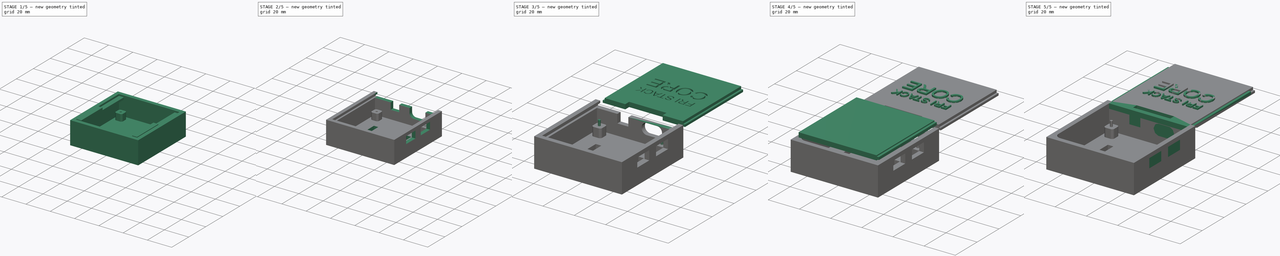
[diagram: build sequence overview — one tinted view per stage of 5, left to right]
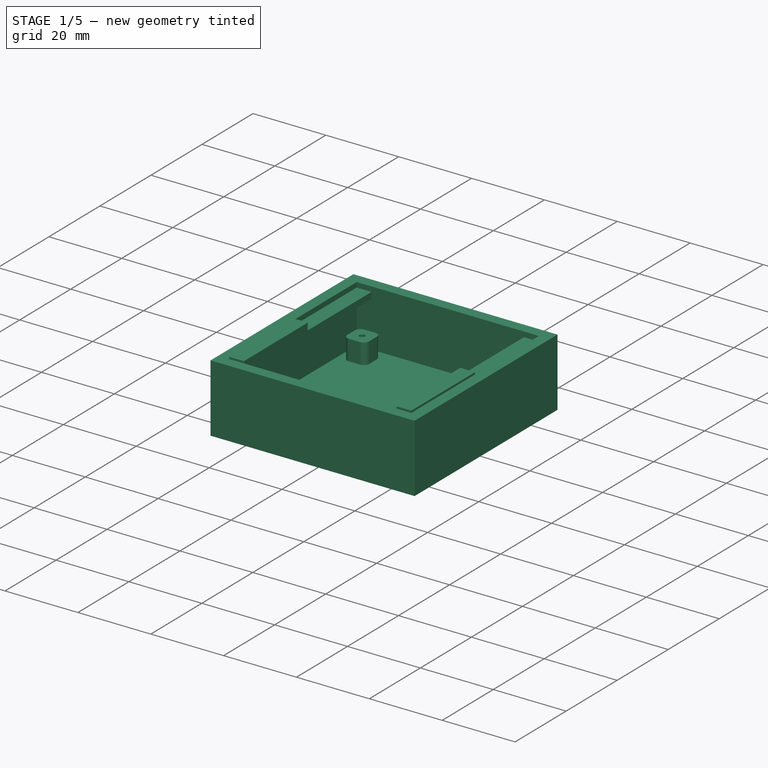
[diagram: stage 1 of 5 — iso view after this stage's code; geometry added in this stage tinted green]
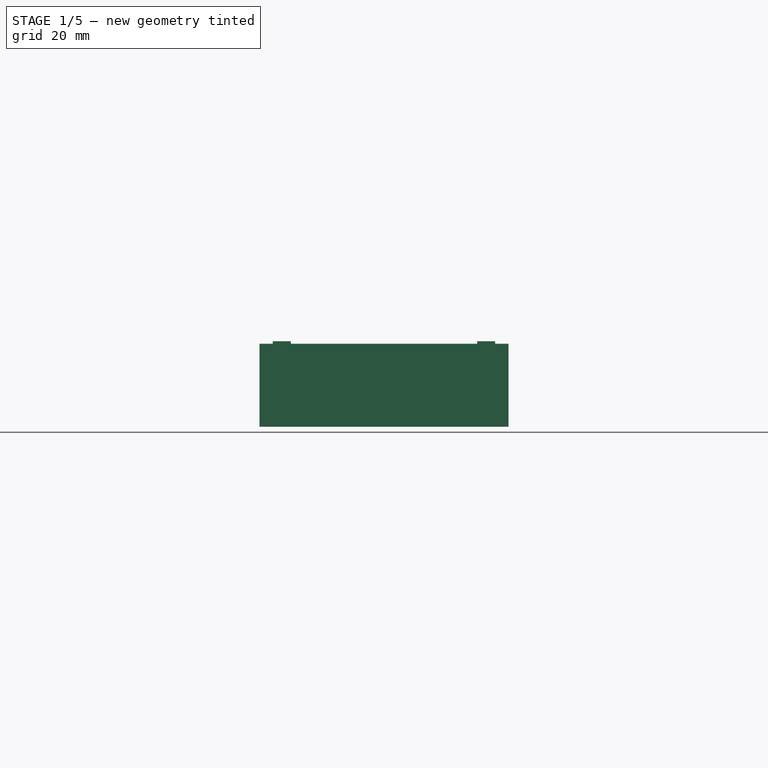
[diagram: stage 1 of 5 — front view after this stage's code; geometry added in this stage tinted green]
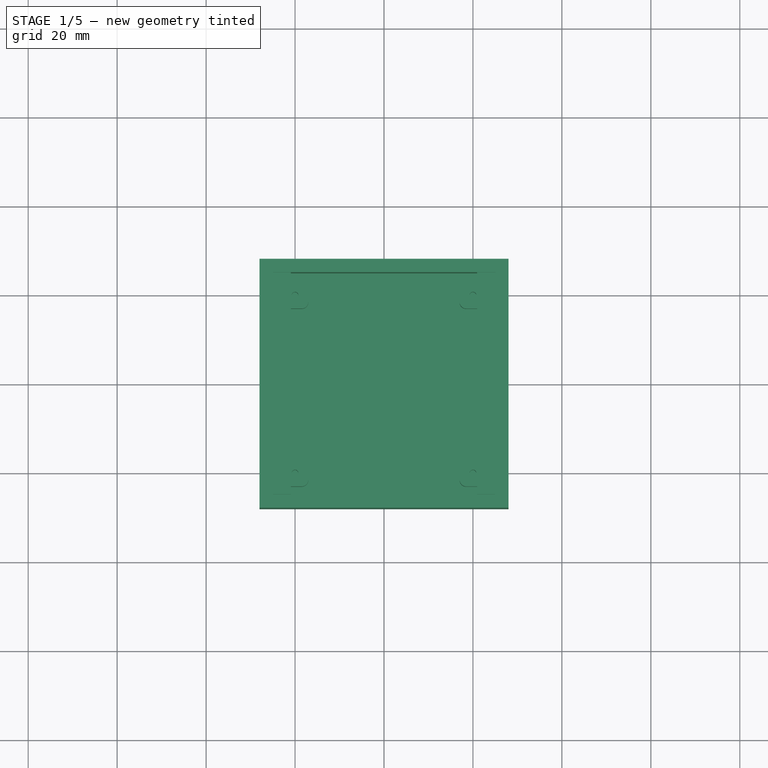
[diagram: stage 1 of 5 — top view after this stage's code; geometry added in this stage tinted green]
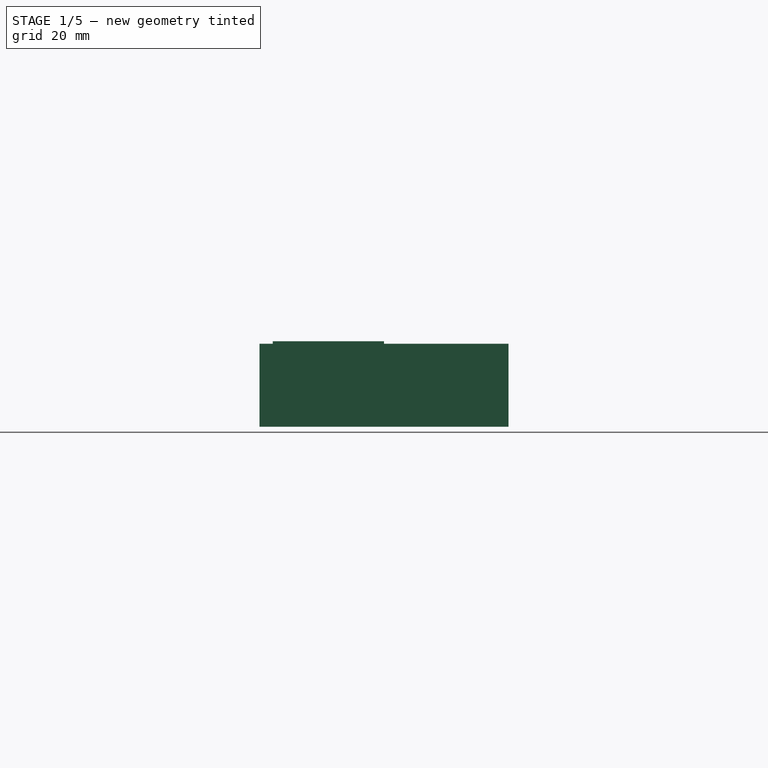
[diagram: stage 1 of 5 — right view after this stage's code; geometry added in this stage tinted green]
FCSTD DOCUMENT  (FreeCAD 1.0R39109 (Git))
Label: Export3Dcover
License: All rights reserved
LicenseURL: https://en.wikipedia.org/wiki/All_rights_reserved
objects: Part::Feature×69, Sketcher::SketchObject×23, PartDesign::Pocket×14, Part::Part2DObjectPython×13, PartDesign::Pad×11, Part::Extrusion×9, Part::MultiFuse×7, Part::Fuse×5, Part::Cut×5, PartDesign::SubShapeBinder×4, PartDesign::Body×3, App::Part×1, Measure::MeasurePython×1, App::DocumentObjectGroup×1
note: 236 computed .brp shape members not serialized (recipe doc carries the construction recipe); baked Part::Feature solids carry a one-line shape summary decoded from their .brp

FEATURE [Sketcher::SketchObject] Sketch015  label="Drazka"
  ArcFitTolerance = 1e-06
  FullyConstrained = false
  MakeInternals = false
  Placement = pos=(0,28,-0.67) rot=(1,0,0;1.5708rad)
  sketch-geometry (8):
    g0: LineSegment StartX=-26.4554 StartY=6.3897 StartZ=0 EndX=-26.4554 EndY=4.6797 EndZ=0
    g1: LineSegment StartX=-26.4554 StartY=4.6797 StartZ=0 EndX=-20.9354 EndY=4.6797 EndZ=0
    g2: LineSegment StartX=-20.9354 StartY=4.6797 StartZ=0 EndX=-20.9354 EndY=6.3897 EndZ=0
    g3: LineSegment StartX=-20.9354 StartY=6.3897 StartZ=0 EndX=-26.4554 EndY=6.3897 EndZ=0
    g4: LineSegment StartX=26.4509 StartY=6.37176 StartZ=0 EndX=20.9309 EndY=6.37176 EndZ=0
    g5: LineSegment StartX=20.9309 StartY=6.37176 StartZ=0 EndX=20.9309 EndY=4.66176 EndZ=0
    g6: LineSegment StartX=20.9309 StartY=4.66176 StartZ=0 EndX=26.4509 EndY=4.66176 EndZ=0
    g7: LineSegment StartX=26.4509 StartY=4.66176 StartZ=0 EndX=26.4509 EndY=6.37176 EndZ=0
  constraints (20):
    c: Coincident(g0,g1)
    c: Coincident(g1,g2)
    c: Coincident(g2,g3)
    c: Coincident(g3,g0)
    c: Vertical(g0)
    c: Vertical(g2)
    c: Horizontal(g1)
    c: Horizontal(g3)
    c: Distance(g0,g2) = 5.52
    c: Distance(g3,g1) = 1.71
    c: Coincident(g4,g5)
    c: Coincident(g5,g6)
    c: Coincident(g6,g7)
    c: Coincident(g7,g4)
    c: Horizontal(g4)
    c: Horizontal(g6)
    c: Vertical(g5)
    c: Vertical(g7)
    c: Distance(g5,g7) = 5.52
    c: Distance(g4,g6) = 1.71
FEATURE [Sketcher::SketchObject] Sketch  label="BaseBottom"
  ArcFitTolerance = 1e-06
  FullyConstrained = false
  MakeInternals = false
  Placement = pos=(0,0,-11.59) rot=(0,0,1;0rad)
  sketch-geometry (20):
    g0: LineSegment StartX=-28 StartY=-28 StartZ=0 EndX=28 EndY=-28 EndZ=0
    g1: LineSegment StartX=28 StartY=-28 StartZ=0 EndX=28 EndY=28 EndZ=0
    g2: LineSegment StartX=28 StartY=28 StartZ=0 EndX=-28 EndY=28 EndZ=0
    g3: LineSegment StartX=-28 StartY=28 StartZ=0 EndX=-28 EndY=-28 EndZ=0
    g4: GeomPoint [constr] X=0 Y=0 Z=0
    g5: LineSegment StartX=-21.0134 StartY=-25 StartZ=0 EndX=21.0392 EndY=-25 EndZ=0
    g6: LineSegment StartX=25 StartY=-21.0392 StartZ=0 EndX=25 EndY=21.0963 EndZ=0
    g7: LineSegment StartX=21.0963 StartY=25 StartZ=0 EndX=-20.9791 EndY=25 EndZ=0
    g8: LineSegment StartX=-25 StartY=20.9791 StartZ=0 EndX=-25 EndY=-21.0134 EndZ=0
    g9: GeomPoint [constr] X=0 Y=0 Z=0
    g10: ArcOfCircle CenterX=-21.0134 CenterY=-21.0134 CenterZ=0 NormalX=0 NormalY=0 NormalZ=1 AngleXU=0 Radius=3.98658 StartAngle=3.14159 EndAngle=4.71239
    g11: GeomPoint [constr] X=-25 Y=-25 Z=0
    g12: GeomPoint [constr] X=-25 Y=25 Z=0
    g13: GeomPoint [constr] X=25 Y=25 Z=0
    g14: ArcOfCircle CenterX=21.0392 CenterY=-21.0392 CenterZ=0 NormalX=0 NormalY=0 NormalZ=1 AngleXU=0 Radius=3.96079 StartAngle=4.71239 EndAngle=6.28319
    g15: GeomPoint [constr] X=25 Y=-25 Z=0
    g16: LineSegment StartX=-25 StartY=20.9791 StartZ=0 EndX=-25 EndY=25 EndZ=0
    g17: LineSegment StartX=-20.9791 StartY=25 StartZ=0 EndX=-25 EndY=25 EndZ=0
    g18: LineSegment StartX=21.0963 StartY=25 StartZ=0 EndX=25 EndY=25 EndZ=0
    g19: LineSegment StartX=25 StartY=21.0963 StartZ=0 EndX=25 EndY=25 EndZ=0
  constraints (40):
    c: Coincident(g0,g1)
    c: Coincident(g1,g2)
    c: Coincident(g2,g3)
    c: Coincident(g3,g0)
    c: Horizontal(g0)
    c: Horizontal(g2)
    c: Vertical(g1)
    c: Vertical(g3)
    c: Symmetric(g2,g0,g4)
    c: Distance(g1,g3) = 56
    c: Distance(g0,g2) = 56
    c: Coincident(g4,g-1)
    c: Horizontal(g5)
    c: Horizontal(g7)
    c: Vertical(g6)
    c: Vertical(g8)
    c: Symmetric(g13,g11,g9)
    c: Distance(g15,g11) = 50
    c: Distance(g11,g12) = 50
    c: Coincident(g9,g4)
    c: PointOnObject(g11,g8)
    c: PointOnObject(g11,g5)
    c: Tangent(g8,g10) = -1.5708
    c: Tangent(g5,g10) = -1.5708
    c: PointOnObject(g12,g8)
    c: PointOnObject(g12,g7)
    c: PointOnObject(g13,g7)
    c: PointOnObject(g13,g6)
    c: PointOnObject(g15,g5)
    c: PointOnObject(g15,g6)
    c: Tangent(g5,g14) = -1.5708
    c: Tangent(g6,g14) = -1.5708
    c: Coincident(g16,g8)
    c: Coincident(g16,g12)
    c: Coincident(g17,g7)
    c: Coincident(g17,g12)
    c: Coincident(g18,g7)
    c: Coincident(g18,g13)
    c: Coincident(g19,g6)
    c: Coincident(g19,g13)
FEATURE [PartDesign::Pad] Pad
  Direction = (0,0,1)
  Length = 18.68
  Length2 = 10
  Placement = pos=(0,0,-11.59) rot=(0,0,1;0rad)
  Profile = -> Sketch
  ReferenceAxis = -> Sketch [N_Axis]
  Refine = true
  Suppressed = false
  Type = 0
FEATURE [PartDesign::Pad] Pad001
  BaseFeature = -> Pad
  Direction = (0,0,1)
  Length = 17
  Length2 = 10
  Placement = pos=(0,0,-11.59) rot=(0,0,1;0rad)
  Profile = -> Sketch
  ReferenceAxis = -> Sketch [N_Axis]
  Refine = true
  Suppressed = false
  Type = 0
FEATURE [Sketcher::SketchObject] Sketch004
  ArcFitTolerance = 1e-06
  AttachmentSupport = -> [Sketch]
  FullyConstrained = true
  MakeInternals = true
  MapMode = 2
  Placement = pos=(0,0,-11.59) rot=(0,0,1;0rad)
  sketch-geometry (5):
    g0: LineSegment StartX=-25 StartY=-25 StartZ=0 EndX=25 EndY=-25 EndZ=0
    g1: LineSegment StartX=25 StartY=-25 StartZ=0 EndX=25 EndY=25 EndZ=0
    g2: LineSegment StartX=25 StartY=25 StartZ=0 EndX=-25 EndY=25 EndZ=0
    g3: LineSegment StartX=-25 StartY=25 StartZ=0 EndX=-25 EndY=-25 EndZ=0
    g4: GeomPoint [constr] X=0 Y=0 Z=0
  constraints (12):
    c: Coincident(g0,g1)
    c: Coincident(g1,g2)
    c: Coincident(g2,g3)
    c: Coincident(g3,g0)
    c: Horizontal(g0)
    c: Horizontal(g2)
    c: Vertical(g1)
    c: Vertical(g3)
    c: Symmetric(g2,g0,g4)
    c: Distance(g1,g3) = 50
    c: Distance(g0,g2) = 50
    c: Coincident(g4,g-1)
FEATURE [PartDesign::Pad] Pad002
  BaseFeature = -> Pad001
  Direction = (0,0,1)
  Length = 3
  Length2 = 10
  Placement = pos=(0,0,-11.59) rot=(0,0,1;0rad)
  Profile = -> Sketch004
  ReferenceAxis = -> Sketch004 [N_Axis]
  Refine = true
  Suppressed = false
  Type = 0
FEATURE [Sketcher::SketchObject] Sketch005  label="Headersall"
  ArcFitTolerance = 1e-06
  AttachmentSupport = -> [Pad002]
  FullyConstrained = false
  MakeInternals = false
  MapMode = 2
  Placement = pos=(0,0,-11.59) rot=(0,0,1;0rad)
  sketch-geometry (8):
    g0: LineSegment StartX=-15.3691 StartY=-21.3163 StartZ=0 EndX=-11.8299 EndY=-21.3163 EndZ=0
    g1: LineSegment StartX=-11.8299 StartY=-21.3163 StartZ=0 EndX=-11.8299 EndY=10.1597 EndZ=0
    g2: LineSegment StartX=-11.8299 StartY=10.1597 StartZ=0 EndX=-15.3691 EndY=10.1597 EndZ=0
    g3: LineSegment StartX=-15.3691 StartY=10.1597 StartZ=0 EndX=-15.3691 EndY=-21.3163 EndZ=0
    g4: LineSegment StartX=11.8305 StartY=-21.3004 StartZ=0 EndX=15.37 EndY=-21.3004 EndZ=0
    g5: LineSegment StartX=15.37 StartY=-21.3004 StartZ=0 EndX=15.37 EndY=10.1696 EndZ=0
    g6: LineSegment StartX=15.37 StartY=10.1696 StartZ=0 EndX=11.8305 EndY=10.1696 EndZ=0
    g7: LineSegment StartX=11.8305 StartY=10.1696 StartZ=0 EndX=11.8305 EndY=-21.3004 EndZ=0
  constraints (16):
    c: Coincident(g0,g1)
    c: Coincident(g1,g2)
    c: Coincident(g2,g3)
    c: Coincident(g3,g0)
    c: Horizontal(g0)
    c: Horizontal(g2)
    c: Vertical(g1)
    c: Vertical(g3)
    c: Coincident(g4,g5)
    c: Coincident(g5,g6)
    c: Coincident(g6,g7)
    c: Coincident(g7,g4)
    c: Horizontal(g4)
    c: Horizontal(g6)
    c: Vertical(g5)
    c: Vertical(g7)
FEATURE [PartDesign::Pocket] Pocket003
  BaseFeature = -> Pad002
  Direction = (0,0,-1)
  Length = 3
  Length2 = 5
  Placement = pos=(0,0,-11.59) rot=(0,0,1;0rad)
  Profile = -> Sketch005
  ReferenceAxis = -> Sketch005 [N_Axis]
  Refine = true
  Suppressed = false
  Type = 0
FEATURE [PartDesign::Pocket] Pocket004
  BaseFeature = -> Pocket003
  Direction = (0,0,-1)
  Length = 5
  Length2 = 5
  Placement = pos=(0,0,-11.59) rot=(0,0,1;0rad)
  Profile = -> Sketch005
  ReferenceAxis = -> Sketch005 [N_Axis]
  Refine = true
  Suppressed = false
  Type = 0
FEATURE [Sketcher::SketchObject] Sketch016  label="UchytkaStvorec"
  ArcFitTolerance = 1e-06
  AttachmentSupport = -> [Sketch]
  FullyConstrained = false
  MakeInternals = false
  MapMode = 2
  Placement = pos=(0,0,-11.59) rot=(0,0,1;0rad)
  sketch-geometry (40):
    g0: LineSegment StartX=-21.5076 StartY=-23.0058 StartZ=0 EndX=-18.5076 EndY=-23.0058 EndZ=0
    g1: LineSegment StartX=-17.0076 StartY=-21.5058 StartZ=0 EndX=-17.0076 EndY=-18.5058 EndZ=0
    g2: LineSegment StartX=-18.5076 StartY=-17.0058 StartZ=0 EndX=-21.5076 EndY=-17.0058 EndZ=0
    g3: LineSegment StartX=-23.0076 StartY=-18.5058 StartZ=0 EndX=-23.0076 EndY=-21.5058 EndZ=0
    g4: ArcOfCircle CenterX=-21.5076 CenterY=-21.5058 CenterZ=0 NormalX=0 NormalY=0 NormalZ=1 AngleXU=0 Radius=1.5 StartAngle=3.14159 EndAngle=4.71239
    g5: ArcOfCircle CenterX=-18.5076 CenterY=-21.5058 CenterZ=0 NormalX=0 NormalY=0 NormalZ=1 AngleXU=0 Radius=1.5 StartAngle=4.71239 EndAngle=6.28319
    g6: ArcOfCircle CenterX=-18.5076 CenterY=-18.5058 CenterZ=0 NormalX=0 NormalY=0 NormalZ=1 AngleXU=0 Radius=1.5 StartAngle=0 EndAngle=1.5708
    g7: ArcOfCircle CenterX=-21.5076 CenterY=-18.5058 CenterZ=0 NormalX=0 NormalY=0 NormalZ=1 AngleXU=0 Radius=1.5 StartAngle=1.5708 EndAngle=3.14159
    g8: GeomPoint [constr] X=-23.0076 Y=-23.0058 Z=0
    g9: GeomPoint [constr] X=-17.0076 Y=-17.0058 Z=0
    g10: LineSegment StartX=23.0053 StartY=-21.5041 StartZ=0 EndX=23.0053 EndY=-18.5041 EndZ=0
    g11: LineSegment StartX=21.5053 StartY=-17.0041 StartZ=0 EndX=18.5053 EndY=-17.0041 EndZ=0
    g12: LineSegment StartX=17.0053 StartY=-18.5041 StartZ=0 EndX=17.0053 EndY=-21.5041 EndZ=0
    g13: LineSegment StartX=18.5053 StartY=-23.0041 StartZ=0 EndX=21.5053 EndY=-23.0041 EndZ=0
    g14: ArcOfCircle CenterX=21.5053 CenterY=-21.5041 CenterZ=0 NormalX=0 NormalY=0 NormalZ=1 AngleXU=0 Radius=1.5 StartAngle=4.71239 EndAngle=6.28319
    g15: ArcOfCircle CenterX=21.5053 CenterY=-18.5041 CenterZ=0 NormalX=0 NormalY=0 NormalZ=1 AngleXU=0 Radius=1.5 StartAngle=0 EndAngle=1.5708
    g16: ArcOfCircle CenterX=18.5053 CenterY=-18.5041 CenterZ=0 NormalX=0 NormalY=0 NormalZ=1 AngleXU=0 Radius=1.5 StartAngle=1.5708 EndAngle=3.14159
    g17: ArcOfCircle CenterX=18.5053 CenterY=-21.5041 CenterZ=0 NormalX=0 NormalY=0 NormalZ=1 AngleXU=0 Radius=1.5 StartAngle=3.14159 EndAngle=4.71239
    g18: GeomPoint [constr] X=23.0053 Y=-23.0041 Z=0
    g19: GeomPoint [constr] X=17.0053 Y=-17.0041 Z=0
    g20: LineSegment StartX=-23.0121 StartY=21.4851 StartZ=0 EndX=-23.0121 EndY=18.4851 EndZ=0
    g21: LineSegment StartX=-21.5121 StartY=16.9851 StartZ=0 EndX=-18.5121 EndY=16.9851 EndZ=0
    g22: LineSegment StartX=-17.0121 StartY=18.4851 StartZ=0 EndX=-17.0121 EndY=21.4851 EndZ=0
    g23: LineSegment StartX=-18.5121 StartY=22.9851 StartZ=0 EndX=-21.5121 EndY=22.9851 EndZ=0
    g24: ArcOfCircle CenterX=-21.5121 CenterY=21.4851 CenterZ=0 NormalX=0 NormalY=0 NormalZ=1 AngleXU=0 Radius=1.5 StartAngle=1.5708 EndAngle=3.14159
    g25: ArcOfCircle CenterX=-21.5121 CenterY=18.4851 CenterZ=0 NormalX=0 NormalY=0 NormalZ=1 AngleXU=0 Radius=1.5 StartAngle=3.14159 EndAngle=4.71239
    g26: ArcOfCircle CenterX=-18.5121 CenterY=18.4851 CenterZ=0 NormalX=0 NormalY=0 NormalZ=1 AngleXU=0 Radius=1.5 StartAngle=4.71239 EndAngle=6.28319
    g27: ArcOfCircle CenterX=-18.5121 CenterY=21.4851 CenterZ=0 NormalX=0 NormalY=0 NormalZ=1 AngleXU=0 Radius=1.5 StartAngle=0 EndAngle=1.5708
    g28: GeomPoint [constr] X=-23.0121 Y=22.9851 Z=0
    g29: GeomPoint [constr] X=-17.0121 Y=16.9851 Z=0
    g30: LineSegment StartX=21.492 StartY=22.9784 StartZ=0 EndX=18.492 EndY=22.9784 EndZ=0
    g31: LineSegment StartX=16.992 StartY=21.4784 StartZ=0 EndX=16.992 EndY=18.4784 EndZ=0
    g32: LineSegment StartX=18.492 StartY=16.9784 StartZ=0 EndX=21.492 EndY=16.9784 EndZ=0
    g33: LineSegment StartX=22.992 StartY=18.4784 StartZ=0 EndX=22.992 EndY=21.4784 EndZ=0
    g34: ArcOfCircle CenterX=21.492 CenterY=21.4784 CenterZ=0 NormalX=0 NormalY=0 NormalZ=1 AngleXU=0 Radius=1.5 StartAngle=0 EndAngle=1.5708
    g35: ArcOfCircle CenterX=18.492 CenterY=21.4784 CenterZ=0 NormalX=0 NormalY=0 NormalZ=1 AngleXU=0 Radius=1.5 StartAngle=1.5708 EndAngle=3.14159
    g36: ArcOfCircle CenterX=18.492 CenterY=18.4784 CenterZ=0 NormalX=0 NormalY=0 NormalZ=1 AngleXU=0 Radius=1.5 StartAngle=3.14159 EndAngle=4.71239
    g37: ArcOfCircle CenterX=21.492 CenterY=18.4784 CenterZ=0 NormalX=0 NormalY=0 NormalZ=1 AngleXU=0 Radius=1.5 StartAngle=4.71239 EndAngle=6.28319
    g38: GeomPoint [constr] X=22.992 Y=22.9784 Z=0
    g39: GeomPoint [constr] X=16.992 Y=16.9784 Z=0
  constraints (88):
    c: Tangent(g0,g4) = -1.5708
    c: Tangent(g0,g5) = -1.5708
    c: Tangent(g1,g5) = -1.5708
    c: Tangent(g1,g6) = -1.5708
    c: Tangent(g2,g6) = -1.5708
    c: Tangent(g2,g7) = -1.5708
    c: Tangent(g3,g7) = -1.5708
    c: Tangent(g3,g4) = -1.5708
    c: Horizontal(g0)
    c: Horizontal(g2)
    c: Vertical(g1)
    c: Vertical(g3)
    c: Equal(g4,g5)
    c: Equal(g5,g6)
    c: Equal(g6,g7)
    c: PointOnObject(g8,g0)
    c: PointOnObject(g8,g3)
    c: PointOnObject(g9,g1)
    c: PointOnObject(g9,g2)
    c: Distance(g1,g3) = 6
    c: Distance(g0,g2) = 6
    c: Radius(g5) = 1.5
    c: Tangent(g10,g14) = -1.5708
    c: Tangent(g10,g15) = -1.5708
    c: Tangent(g11,g15) = -1.5708
    c: Tangent(g11,g16) = -1.5708
    c: Tangent(g12,g16) = -1.5708
    c: Tangent(g12,g17) = -1.5708
    c: Tangent(g13,g17) = -1.5708
    c: Tangent(g13,g14) = -1.5708
    c: Vertical(g10)
    c: Vertical(g12)
    c: Horizontal(g11)
    c: Horizontal(g13)
    c: Equal(g14,g15)
    c: Equal(g15,g16)
    c: Equal(g16,g17)
    c: PointOnObject(g18,g10)
    c: PointOnObject(g18,g13)
    c: PointOnObject(g19,g11)
    c: PointOnObject(g19,g12)
    c: Distance(g10,g12) = 6
    c: Distance(g11,g13) = 6
    c: Radius(g15) = 1.5
    c: Tangent(g20,g24) = -1.5708
    c: Tangent(g20,g25) = -1.5708
    c: Tangent(g21,g25) = -1.5708
    c: Tangent(g21,g26) = -1.5708
    c: Tangent(g22,g26) = -1.5708
    c: Tangent(g22,g27) = -1.5708
    c: Tangent(g23,g27) = -1.5708
    c: Tangent(g23,g24) = -1.5708
    c: Vertical(g20)
    c: Vertical(g22)
    c: Horizontal(g21)
    c: Horizontal(g23)
    c: Equal(g24,g25)
    c: Equal(g25,g26)
    c: Equal(g26,g27)
    c: PointOnObject(g28,g20)
    c: PointOnObject(g28,g23)
    c: PointOnObject(g29,g21)
    c: PointOnObject(g29,g22)
    c: Distance(g20,g22) = 6
    c: Distance(g21,g23) = 6
    c: Radius(g25) = 1.5
    c: Tangent(g30,g34) = -1.5708
    c: Tangent(g30,g35) = -1.5708
    c: Tangent(g31,g35) = -1.5708
    c: Tangent(g31,g36) = -1.5708
    c: Tangent(g32,g36) = -1.5708
    c: Tangent(g32,g37) = -1.5708
    c: Tangent(g33,g37) = -1.5708
    c: Tangent(g33,g34) = -1.5708
    c: Horizontal(g30)
    c: Horizontal(g32)
    c: Vertical(g31)
    c: Vertical(g33)
    c: Equal(g34,g35)
    c: Equal(g35,g36)
    c: Equal(g36,g37)
    c: PointOnObject(g38,g30)
    c: PointOnObject(g38,g33)
    c: PointOnObject(g39,g31)
    c: PointOnObject(g39,g32)
    c: Distance(g31,g33) = 6
    c: Distance(g30,g32) = 6
    c: Radius(g35) = 1.5
FEATURE [Sketcher::SketchObject] Sketch017  label="UchytkaKruh"
  ArcFitTolerance = 1e-06
  AttachmentSupport = -> [Sketch016]
  FullyConstrained = false
  MakeInternals = false
  MapMode = 2
  Placement = pos=(0,0,-11.59) rot=(0,0,1;0rad)
  sketch-geometry (4):
    g0: Circle CenterX=-20.0025 CenterY=-20.004 CenterZ=0 NormalX=0 NormalY=0 NormalZ=1 AngleXU=0 Radius=0.75
    g1: Circle CenterX=-20.005 CenterY=19.9874 CenterZ=0 NormalX=0 NormalY=0 NormalZ=1 AngleXU=0 Radius=0.75
    g2: Circle CenterX=19.9963 CenterY=19.9995 CenterZ=0 NormalX=0 NormalY=0 NormalZ=1 AngleXU=0 Radius=0.75
    g3: Circle CenterX=19.9994 CenterY=-20.0013 CenterZ=0 NormalX=0 NormalY=0 NormalZ=1 AngleXU=0 Radius=0.75
  constraints (4):
    c: Diameter(g0) = 1.5
    c: Diameter(g1) = 1.5
    c: Diameter(g2) = 1.5
    c: Diameter(g3) = 1.5
FEATURE [Part::Extrusion] Extrude002
  Base = -> Sketch016
  Dir = (0,0,1)
  DirMode = 2
  FaceMakerClass = Part::FaceMakerBullseye
  FaceMakerMode = 3
  LengthFwd = 8.6
  LengthRev = 0
  Solid = true
  Symmetric = false
FEATURE [Part::Extrusion] Extrude003
  Base = -> Sketch017
  Dir = (0,0,1)
  DirMode = 2
  FaceMakerClass = Part::FaceMakerBullseye
  FaceMakerMode = 3
  LengthFwd = 12
  LengthRev = 0
  Solid = true
  Symmetric = false
FEATURE [Part::Extrusion] Extrude004  label="drazka"
  Base = -> Sketch015
  Dir = (0,-1,2e-16)
  DirMode = 2
  FaceMakerClass = Part::FaceMakerBullseye
  FaceMakerMode = 3
  LengthFwd = 53
  LengthRev = 0
  Solid = true
  Symmetric = false
FEATURE [Sketcher::SketchObject] Sketch018
  ArcFitTolerance = 1e-06
  FullyConstrained = false
  MakeInternals = false
  Placement = pos=(0,0,-0.44) rot=(1,0,0;1.5708rad)
  sketch-geometry (12):
    g0: LineSegment StartX=20.9318 StartY=7.08855 StartZ=0 EndX=20.9318 EndY=6.13602 EndZ=0
    g1: LineSegment StartX=20.9318 StartY=6.13602 StartZ=0 EndX=24.9884 EndY=6.13602 EndZ=0
    g2: LineSegment StartX=24.9884 StartY=6.13602 StartZ=0 EndX=24.9884 EndY=7.08855 EndZ=0
    g3: LineSegment StartX=-25.0119 StartY=7.08939 StartZ=0 EndX=-25.0119 EndY=6.15855 EndZ=0
    g4: LineSegment StartX=-25.0119 StartY=6.15855 StartZ=0 EndX=-20.9332 EndY=6.15855 EndZ=0
    g5: LineSegment StartX=-20.9332 StartY=6.15855 StartZ=0 EndX=-20.9332 EndY=7.08939 EndZ=0
    g6: LineSegment StartX=-25.0119 StartY=7.08939 StartZ=0 EndX=-25.0119 EndY=8.08939 EndZ=0
    g7: LineSegment StartX=-20.9332 StartY=7.08939 StartZ=0 EndX=-20.9332 EndY=8.08939 EndZ=0
    g8: LineSegment StartX=-20.9332 StartY=8.08939 StartZ=0 EndX=-25.0119 EndY=8.08939 EndZ=0
    g9: LineSegment StartX=24.9884 StartY=7.08855 StartZ=0 EndX=24.9884 EndY=8.08855 EndZ=0
    g10: LineSegment StartX=20.9318 StartY=7.08855 StartZ=0 EndX=20.9318 EndY=8.08855 EndZ=0
    g11: LineSegment StartX=20.9318 StartY=8.08855 StartZ=0 EndX=24.9884 EndY=8.08855 EndZ=0
  constraints (28):
    c: Coincident(g0,g1)
    c: Coincident(g1,g2)
    c: Horizontal(g1)
    c: Vertical(g0)
    c: Vertical(g2)
    c: Coincident(g3,g4)
    c: Coincident(g4,g5)
    c: Vertical(g3)
    c: Vertical(g5)
    c: Horizontal(g4)
    c: Distance(g6) = 1
    c: Vertical(g6)
    c: Coincident(g6,g3)
    c: Distance(g7) = 1
    c: Vertical(g7)
    c: Coincident(g7,g5)
    c: Coincident(g8,g7)
    c: Coincident(g8,g6)
    c: Horizontal(g8)
    c: Distance(g9) = 1
    c: Vertical(g9)
    c: Coincident(g9,g2)
    c: Distance(g10) = 1
    c: Vertical(g10)
    c: Coincident(g10,g0)
    c: Coincident(g11,g10)
    c: Coincident(g11,g9)
    c: Horizontal(g11)
FEATURE [PartDesign::Body] Body  label="BottomCover"
  AllowCompound = false
  Group = -> [Rectangle,Rectangle002,Rectangle003,Rectangle004,Rectangle009,Rectangle008,Rectangle007,Rectangle006,Rectangle005,Sketch,Pad,Sketch002,Sketch003,Pad001,Sketch001,Sketch004,Pad002,Sketch005,Pocket003,Pocket004,Pocket005,Sketch006,Sketch008,Pocket006,Pocket007,Pocket008,Sketch015,Sketch016,Sketch017,Sketch018]
  Origin = -> Origin
  Tip = -> Pocket008
FEATURE [Part::Extrusion] Extrude005
  Base = -> Sketch018
  Dir = (0,-1,2e-16)
  DirMode = 2
  FaceMakerClass = Part::FaceMakerBullseye
  FaceMakerMode = 3
  LengthFwd = 25
  LengthRev = 0
  Solid = true
  Symmetric = false
FEATURE [Part::Cut] Cut003
  Base = -> Extrude002
  Tool = -> Extrude003
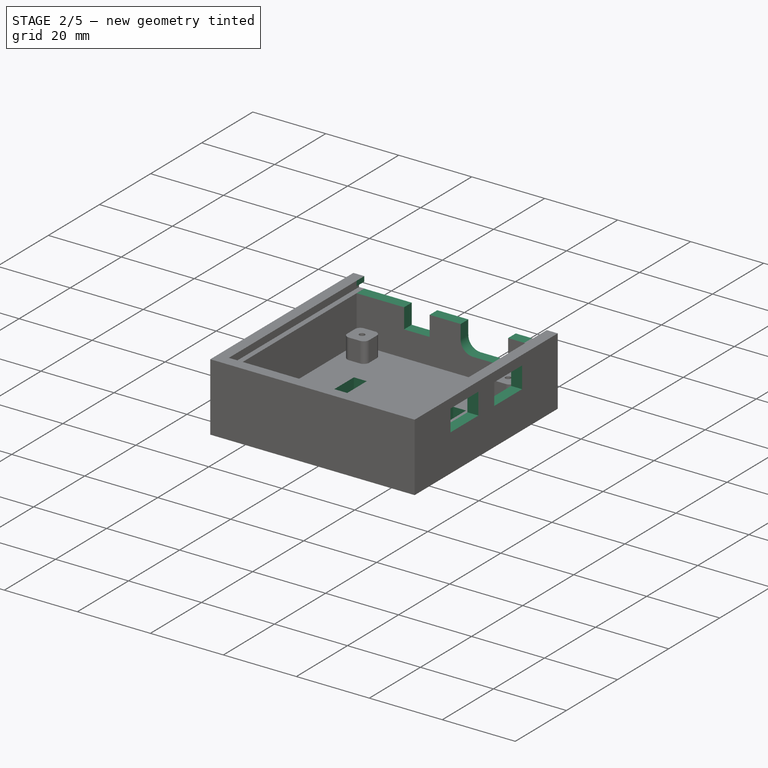
[diagram: stage 2 of 5 — iso view after this stage's code; geometry added in this stage tinted green]
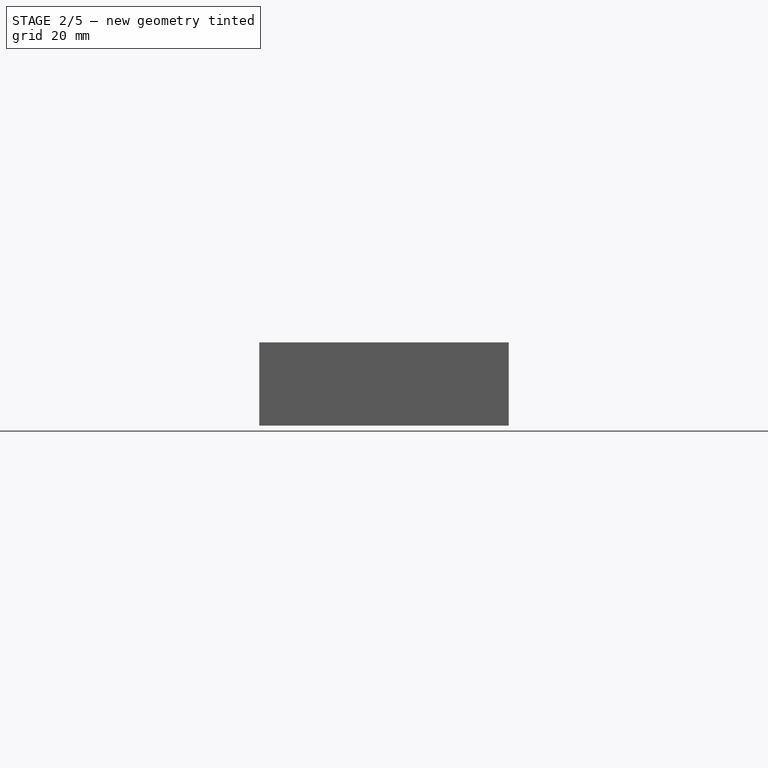
[diagram: stage 2 of 5 — front view after this stage's code; geometry added in this stage tinted green]
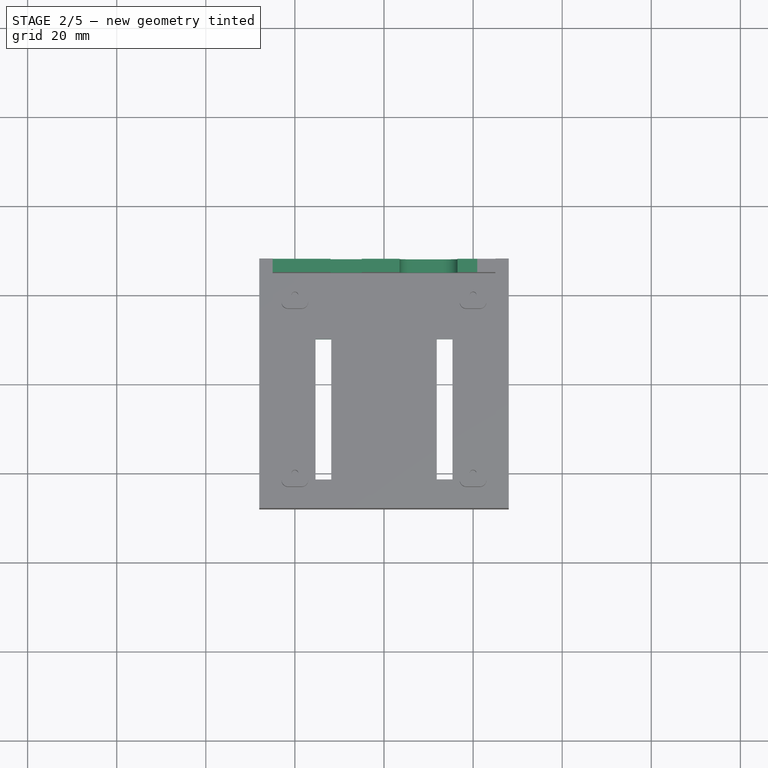
[diagram: stage 2 of 5 — top view after this stage's code; geometry added in this stage tinted green]
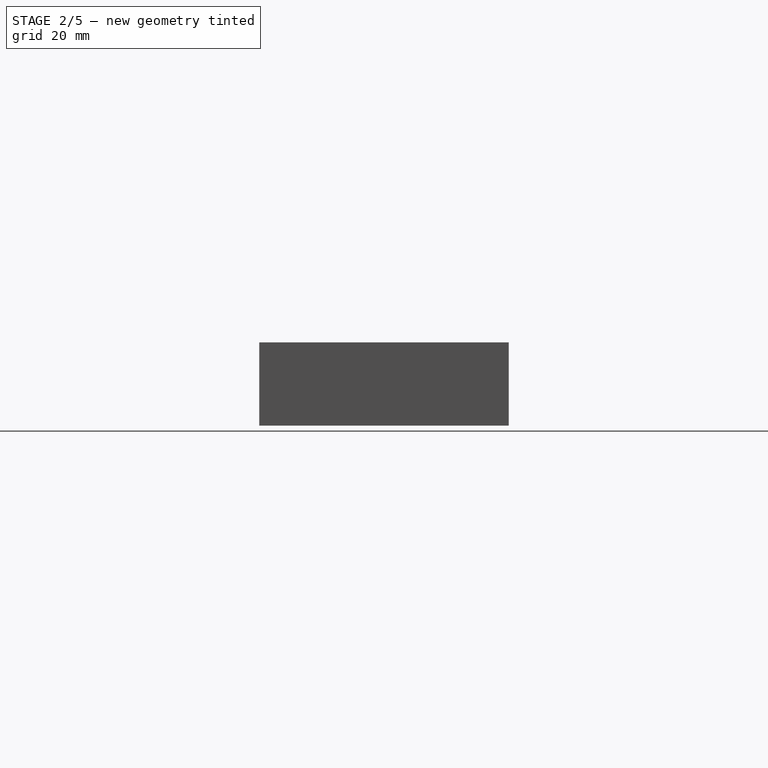
[diagram: stage 2 of 5 — right view after this stage's code; geometry added in this stage tinted green]
FEATURE [PartDesign::Pocket] Pocket005
  BaseFeature = -> Pocket004
  Direction = (0,0,-1)
  Length = 5
  Length2 = 5
  Placement = pos=(0,0,-11.59) rot=(0,0,1;0rad)
  Profile = -> Sketch005
  ReferenceAxis = -> Sketch005 [N_Axis]
  Refine = true
  Reversed = true
  Suppressed = false
  Type = 0
FEATURE [Sketcher::SketchObject] Sketch006  label="HeaderTop001"
  ArcFitTolerance = 1e-06
  AttachmentOffset = pos=(0,0,18.68) rot=(0,0,1;0rad)
  AttachmentSupport = -> [Sketch005]
  FullyConstrained = true
  MakeInternals = false
  MapMode = 2
  Placement = pos=(0,0,7.09) rot=(0,0,1;0rad)
  sketch-geometry (5):
    g0: LineSegment StartX=-25 StartY=-25 StartZ=0 EndX=25 EndY=-25 EndZ=0
    g1: LineSegment StartX=25 StartY=-25 StartZ=0 EndX=25 EndY=25 EndZ=0
    g2: LineSegment StartX=25 StartY=25 StartZ=0 EndX=-25 EndY=25 EndZ=0
    g3: LineSegment StartX=-25 StartY=25 StartZ=0 EndX=-25 EndY=-25 EndZ=0
    g4: GeomPoint [constr] X=0 Y=0 Z=0
  constraints (12):
    c: Coincident(g0,g1)
    c: Coincident(g1,g2)
    c: Coincident(g2,g3)
    c: Coincident(g3,g0)
    c: Horizontal(g0)
    c: Horizontal(g2)
    c: Vertical(g1)
    c: Vertical(g3)
    c: Symmetric(g2,g0,g4)
    c: Distance(g1,g3) = 50
    c: Distance(g0,g2) = 50
    c: Coincident(g4,g-1)
FEATURE [PartDesign::Pocket] Pocket006
  BaseFeature = -> Pocket005
  Direction = (-1,1e-16,-2e-16)
  Length = 10
  Length2 = 5
  Placement = pos=(0,0,-11.59) rot=(0,0,1;0rad)
  Profile = -> Sketch003
  ReferenceAxis = -> Sketch003 [N_Axis]
  Refine = true
  Reversed = true
  Suppressed = false
  Type = 0
FEATURE [PartDesign::Pocket] Pocket007
  BaseFeature = -> Pocket006
  Direction = (0,1,0)
  Length = 5
  Length2 = 5
  Placement = pos=(0,0,-11.59) rot=(0,0,1;0rad)
  Profile = -> Sketch001
  ReferenceAxis = -> Sketch001 [N_Axis]
  Refine = true
  Suppressed = false
  Type = 0
FEATURE [PartDesign::Pocket] Pocket008
  BaseFeature = -> Pocket007
  Direction = (0,1,0)
  Length = 5
  Length2 = 5
  Placement = pos=(0,0,-11.59) rot=(0,0,1;0rad)
  Profile = -> Sketch002
  ReferenceAxis = -> Sketch002 [N_Axis]
  Refine = true
  Suppressed = false
  Type = 0
FEATURE [PartDesign::Pocket] Pocket009
  BaseFeature = -> Pocket008
  Direction = (0,0,-1)
  Length = 5
  Length2 = 5
  Placement = pos=(0,0,-11.59) rot=(0,0,1;0rad)
  Profile = -> Sketch008
  ReferenceAxis = -> Sketch008 [N_Axis]
  Refine = true
  Suppressed = false
  Type = 0
FEATURE [Part::Cut] Cut
  Base = -> Pocket009
  Tool = -> Extrude004
FEATURE [Part::Cut] Cut001
  Base = -> Cut
  Tool = -> Extrude005
FEATURE [Sketcher::SketchObject] Sketch043  label="DoladenieC-portu"
  ArcFitTolerance = 1e-06
  AttachmentOffset = pos=(0.11,1.17,0) rot=(0,0,1;0rad)
  AttachmentSupport = -> [Fusion009]
  FullyConstrained = false
  MakeInternals = false
  MapMode = 13
  Placement = pos=(24.2335,28,6.30176) rot=(1,0,0;1.5708rad)
  sketch-geometry (4):
    g0: LineSegment StartX=-7.7369 StartY=-6.05826 StartZ=0 EndX=-7.7369 EndY=-1.86826 EndZ=0
    g1: LineSegment StartX=-7.7369 StartY=-1.86826 StartZ=0 EndX=-20.7369 EndY=-1.86826 EndZ=0
    g2: LineSegment StartX=-20.7369 StartY=-1.86826 StartZ=0 EndX=-20.7369 EndY=-6.05826 EndZ=0
    g3: LineSegment StartX=-20.7369 StartY=-6.05826 StartZ=0 EndX=-7.7369 EndY=-6.05826 EndZ=0
  constraints (10):
    c: Coincident(g0,g1)
    c: Coincident(g1,g2)
    c: Coincident(g2,g3)
    c: Coincident(g3,g0)
    c: Vertical(g0)
    c: Vertical(g2)
    c: Horizontal(g1)
    c: Horizontal(g3)
    c: Distance(g0,g2) = 13
    c: Distance(g1,g3) = 4.19
FEATURE [Part::Extrusion] Extrude009  label="Uprava_C_portu"
  Base = -> Sketch043
  Dir = (0,-1,2e-16)
  DirMode = 2
  FaceMakerClass = Part::FaceMakerBullseye
  FaceMakerMode = 3
  LengthFwd = 3.5
  LengthRev = 0
  Solid = true
  Symmetric = false
FEATURE [Part::Fuse] Fusion011
  Base = -> Cut001
  Tool = -> Cut003
FEATURE [Part::Cut] Cut004  label="bottom_v1.1.0"
  Base = -> Fusion011
  Tool = -> Extrude009
FEATURE [Measure::MeasurePython] Center_of_Mass  label="Center_of_Mass: "  # WARN: FeaturePython — macro-defined, semantics opaque (R4)
  Element = -> Body003 [Pad012.]
  Placement = pos=(0.295511,58.4999,5.49076) rot=(0,0,1;0rad)
  Result = (0.295511,58.4999,5.49076)
FEATURE [App::DocumentObjectGroup] Measurements
  Group = -> [Center_of_Mass]
note: 4 file-system paths scrubbed to <path> (originals preserved in the JSON sidecar)
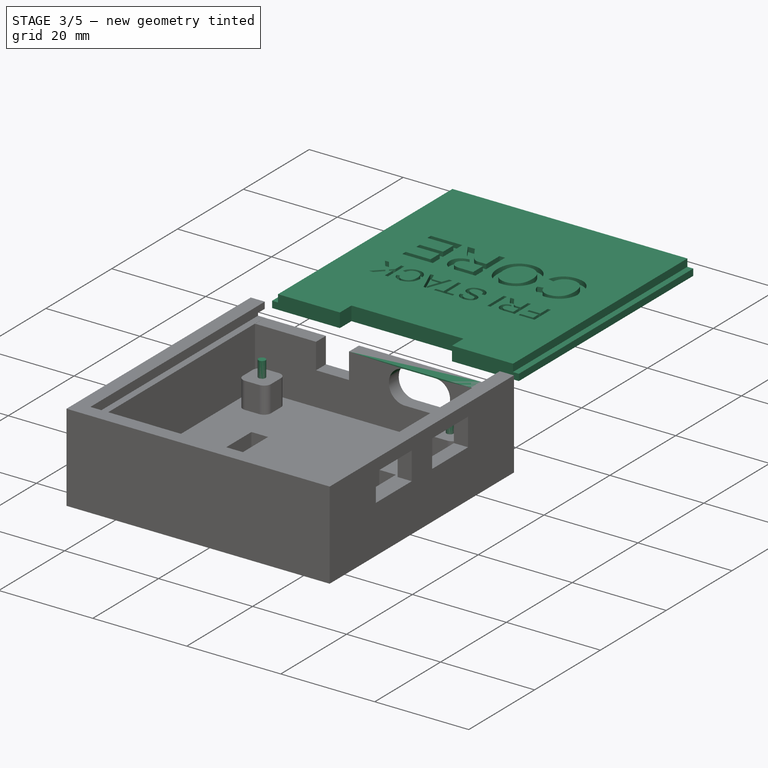
[diagram: stage 3 of 5 — iso view after this stage's code; geometry added in this stage tinted green]
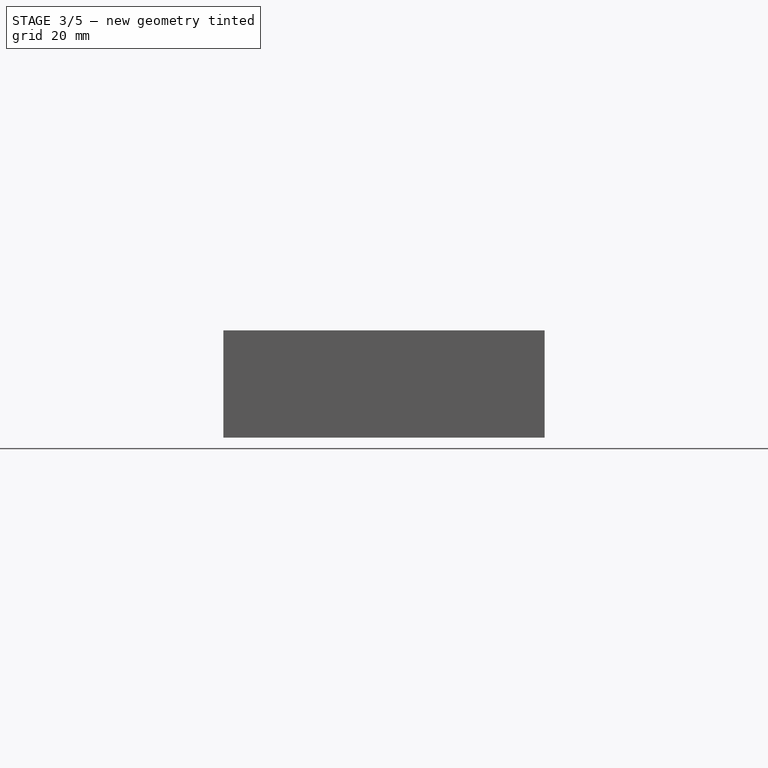
[diagram: stage 3 of 5 — front view after this stage's code; geometry added in this stage tinted green]
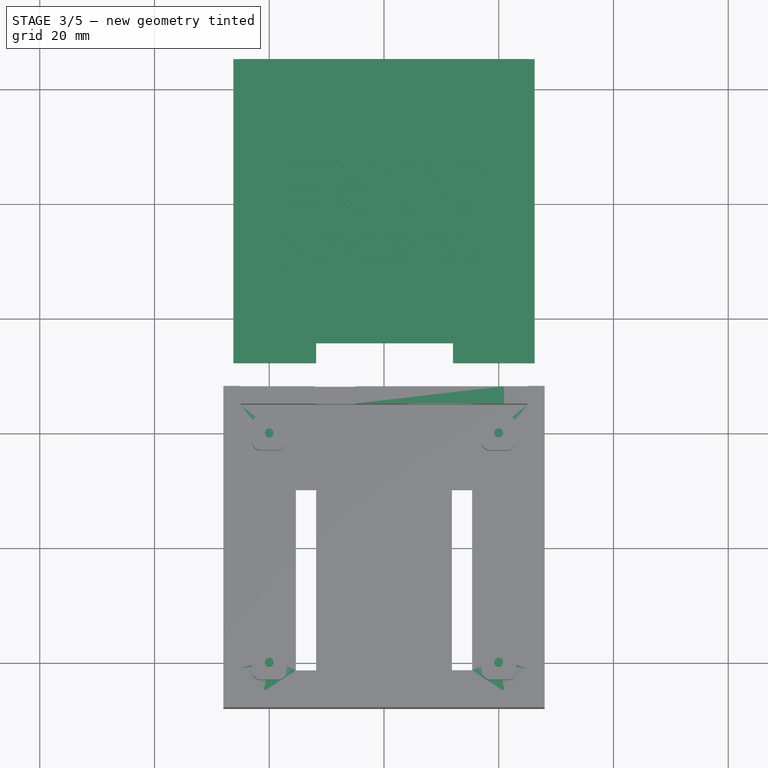
[diagram: stage 3 of 5 — top view after this stage's code; geometry added in this stage tinted green]
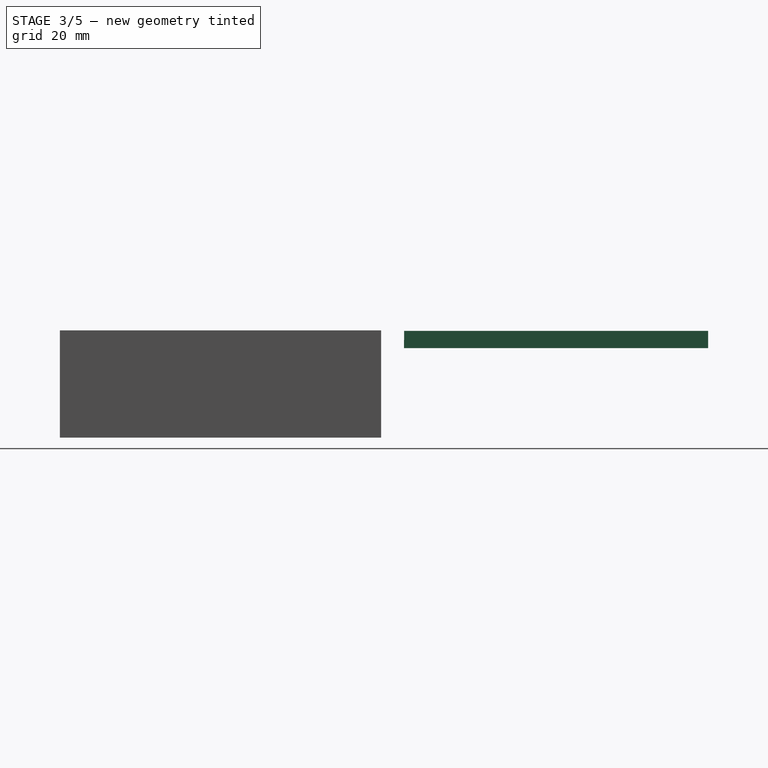
[diagram: stage 3 of 5 — right view after this stage's code; geometry added in this stage tinted green]
FEATURE [Part::MultiFuse] Fusion008
  Shapes = -> [Extrude003,Cut001]
FEATURE [Part::Part2DObjectPython] ShapeString002  label="FriStack003"  # Draft 2D object (typed FeaturePython)
  FontFile = <path>
  Fuse = false
  Justification = 6
  JustificationReference = 0
  KeepLeftMargin = false
  MakeFace = true
  ObliqueAngle = 0
  Placement = pos=(17.66,-3,11) rot=(0,0,1;3.14159rad)
  ScaleToSize = true
  Size = 5
  String = FRI STACK
  Tracking = 0
FEATURE [Part::Extrusion] Extrude006  label="FriStack002"
  Base = -> ShapeString002
  Dir = (0,0,1)
  DirMode = 2
  FaceMakerClass = Part::FaceMakerBullseye
  FaceMakerMode = 3
  LengthFwd = 1
  LengthRev = 0
  Placement = pos=(0,57,-4) rot=(0,0,1;0rad)
  Solid = false
  Symmetric = false
FEATURE [Part::Part2DObjectPython] ShapeString003  label="Core003"  # Draft 2D object (typed FeaturePython)
  FontFile = <path>
  Fuse = false
  Justification = 6
  JustificationReference = 0
  KeepLeftMargin = false
  MakeFace = true
  ObliqueAngle = 0
  Placement = pos=(18,10,11.5) rot=(0,0,1;3.14159rad)
  ScaleToSize = true
  Size = 9
  String = CORE
  Tracking = 0
FEATURE [Part::Extrusion] Extrude007  label="Core002"
  Base = -> ShapeString003
  Dir = (0,0,1)
  DirMode = 2
  FaceMakerClass = Part::FaceMakerBullseye
  FaceMakerMode = 3
  LengthFwd = 1
  LengthRev = 0
  Placement = pos=(0,57,-4.5) rot=(0,0,1;0rad)
  Solid = false
  Symmetric = false
FEATURE [Part::MultiFuse] Fusion010  label="Text001"
  Placement = pos=(0,0,-1) rot=(0,0,1;0rad)
  Shapes = -> [Extrude006,Extrude007]
FEATURE [Sketcher::SketchObject] Sketch027
  ArcFitTolerance = 1e-06
  FullyConstrained = true
  MakeInternals = false
  Placement = pos=(25,1.5,9.5) rot=(0.57735,0.57735,0.57735;2.0944rad)
  sketch-geometry (5):
    g0: LineSegment StartX=-26.5 StartY=-1.5 StartZ=0 EndX=26.5 EndY=-1.5 EndZ=0
    g1: LineSegment StartX=26.5 StartY=-1.5 StartZ=0 EndX=26.5 EndY=1.5 EndZ=0
    g2: LineSegment StartX=26.5 StartY=1.5 StartZ=0 EndX=-26.5 EndY=1.5 EndZ=0
    g3: LineSegment StartX=-26.5 StartY=1.5 StartZ=0 EndX=-26.5 EndY=-1.5 EndZ=0
    g4: GeomPoint [constr] X=0 Y=0 Z=0
  constraints (12):
    c: Coincident(g0,g1)
    c: Coincident(g1,g2)
    c: Coincident(g2,g3)
    c: Coincident(g3,g0)
    c: Horizontal(g0)
    c: Horizontal(g2)
    c: Vertical(g1)
    c: Vertical(g3)
    c: Symmetric(g2,g0,g4)
    c: Distance(g1,g3) = 53
    c: Distance(g0,g2) = 3
    c: Coincident(g4,g-1)
FEATURE [PartDesign::Pad] Pad011
  Direction = (1,-1e-16,2e-16)
  Length = 50
  Length2 = 10
  Placement = pos=(25,1.5,9.5) rot=(0.57735,0.57735,0.57735;2.0944rad)
  Profile = -> Sketch027
  ReferenceAxis = -> Sketch027 [N_Axis]
  Refine = true
  Reversed = true
  Suppressed = false
  Type = 0
FEATURE [Sketcher::SketchObject] Sketch028  label="Drazka1"
  ArcFitTolerance = 1e-06
  FullyConstrained = false
  MakeInternals = false
  Placement = pos=(25,0,-1.3) rot=(0.57735,0.57735,0.57735;2.0944rad)
  sketch-geometry (4):
    g0: LineSegment StartX=-25.006 StartY=10.6984 StartZ=0 EndX=-25.006 EndY=9.2984 EndZ=0
    g1: LineSegment StartX=-25.006 StartY=9.2984 StartZ=0 EndX=27.994 EndY=9.2984 EndZ=0
    g2: LineSegment StartX=27.994 StartY=9.2984 StartZ=0 EndX=27.994 EndY=10.6984 EndZ=0
    g3: LineSegment StartX=27.994 StartY=10.6984 StartZ=0 EndX=-25.006 EndY=10.6984 EndZ=0
  constraints (10):
    c: Coincident(g0,g1)
    c: Coincident(g1,g2)
    c: Coincident(g2,g3)
    c: Coincident(g3,g0)
    c: Vertical(g0)
    c: Vertical(g2)
    c: Horizontal(g1)
    c: Horizontal(g3)
    c: Distance(g0,g2) = 53
    c: Distance(g1,g3) = 1.4
FEATURE [PartDesign::Pad] Pad012
  BaseFeature = -> Pad011
  Direction = (1,-1e-16,2e-16)
  Length = 1.25
  Length2 = 10
  Placement = pos=(25,1.5,9.5) rot=(0.57735,0.57735,0.57735;2.0944rad)
  Profile = -> Sketch028
  ReferenceAxis = -> Sketch028 [N_Axis]
  Refine = true
  Suppressed = false
  Type = 0
FEATURE [Sketcher::SketchObject] Sketch029  label="zadnaVysuvka001"
  ArcFitTolerance = 1e-06
  FullyConstrained = false
  MakeInternals = false
  sketch-geometry (8):
    g0: LineSegment StartX=30.7932 StartY=10.3496 StartZ=0 EndX=30.7932 EndY=8.64956 EndZ=0
    g1: LineSegment StartX=30.7932 StartY=8.64956 StartZ=0 EndX=45.2932 EndY=8.64956 EndZ=0
    g2: LineSegment StartX=45.2932 StartY=8.64956 StartZ=0 EndX=45.2932 EndY=10.3496 EndZ=0
    g3: LineSegment StartX=45.2932 StartY=10.3496 StartZ=0 EndX=30.7932 EndY=10.3496 EndZ=0
    g4: LineSegment StartX=6.80848 StartY=10.3282 StartZ=0 EndX=-7.69152 EndY=10.3282 EndZ=0
    g5: LineSegment StartX=-7.69152 StartY=10.3282 StartZ=0 EndX=-7.69152 EndY=8.62821 EndZ=0
    g6: LineSegment StartX=-7.69152 StartY=8.62821 StartZ=0 EndX=6.80848 EndY=8.62821 EndZ=0
    g7: LineSegment StartX=6.80848 StartY=8.62821 StartZ=0 EndX=6.80848 EndY=10.3282 EndZ=0
  constraints (20):
    c: Coincident(g0,g1)
    c: Coincident(g1,g2)
    c: Coincident(g2,g3)
    c: Coincident(g3,g0)
    c: Vertical(g0)
    c: Vertical(g2)
    c: Horizontal(g1)
    c: Horizontal(g3)
    c: Distance(g0,g2) = 14.5
    c: Distance(g1,g3) = 1.7
    c: Coincident(g4,g5)
    c: Coincident(g5,g6)
    c: Coincident(g6,g7)
    c: Coincident(g7,g4)
    c: Horizontal(g4)
    c: Horizontal(g6)
    c: Vertical(g5)
    c: Vertical(g7)
    c: Distance(g5,g7) = 14.5
    c: Distance(g4,g6) = 1.7
FEATURE [PartDesign::Pad] Pad013
  BaseFeature = -> Pad012
  Direction = (0,0,1)
  Length = 1.5
  Length2 = 10
  Placement = pos=(25,1.5,9.5) rot=(0.57735,0.57735,0.57735;2.0944rad)
  Profile = -> Sketch029
  ReferenceAxis = -> Sketch029 [N_Axis]
  Refine = true
  Suppressed = false
  Type = 0
FEATURE [Sketcher::SketchObject] Sketch030  label="Drazka2"
  ArcFitTolerance = 1e-06
  FullyConstrained = false
  MakeInternals = false
  Placement = pos=(-25,2.08,-0.79) rot=(0.57735,0.57735,0.57735;2.0944rad)
  sketch-geometry (4):
    g0: LineSegment StartX=-27.0808 StartY=10.193 StartZ=0 EndX=-27.0808 EndY=8.79304 EndZ=0
    g1: LineSegment StartX=-27.0808 StartY=8.79304 StartZ=0 EndX=25.9192 EndY=8.79304 EndZ=0
    g2: LineSegment StartX=25.9192 StartY=8.79304 StartZ=0 EndX=25.9192 EndY=10.193 EndZ=0
    g3: LineSegment StartX=25.9192 StartY=10.193 StartZ=0 EndX=-27.0808 EndY=10.193 EndZ=0
  constraints (10):
    c: Coincident(g0,g1)
    c: Coincident(g1,g2)
    c: Coincident(g2,g3)
    c: Coincident(g3,g0)
    c: Vertical(g0)
    c: Vertical(g2)
    c: Horizontal(g1)
    c: Horizontal(g3)
    c: Distance(g0,g2) = 53
    c: Distance(g1,g3) = 1.4
FEATURE [PartDesign::Pad] Pad014
  BaseFeature = -> Pad013
  Direction = (1,-1e-16,2e-16)
  Length = 1.25
  Length2 = 10
  Placement = pos=(25,1.5,9.5) rot=(0.57735,0.57735,0.57735;2.0944rad)
  Profile = -> Sketch030
  ReferenceAxis = -> Sketch030 [N_Axis]
  Refine = true
  Reversed = true
  Suppressed = false
  Type = 0
FEATURE [Sketcher::SketchObject] Sketch031
  ArcFitTolerance = 1e-06
  FullyConstrained = false
  MakeInternals = false
  Placement = pos=(0,0,11.09) rot=(0,0,1;0rad)
  sketch-geometry (4):
    g0: LineSegment StartX=-11.8386 StartY=-21.4993 StartZ=0 EndX=-11.8386 EndY=-25.0024 EndZ=0
    g1: LineSegment StartX=-11.8386 StartY=-25.0024 StartZ=0 EndX=12.0183 EndY=-25.0024 EndZ=0
    g2: LineSegment StartX=12.0183 StartY=-25.0024 StartZ=0 EndX=12.0183 EndY=-21.4993 EndZ=0
    g3: LineSegment StartX=12.0183 StartY=-21.4993 StartZ=0 EndX=-11.8386 EndY=-21.4993 EndZ=0
  constraints (8):
    c: Coincident(g0,g1)
    c: Coincident(g1,g2)
    c: Coincident(g2,g3)
    c: Coincident(g3,g0)
    c: Vertical(g0)
    c: Vertical(g2)
    c: Horizontal(g1)
    c: Horizontal(g3)
FEATURE [PartDesign::Pocket] Pocket018
  BaseFeature = -> Pad014
  Direction = (0,0,-1)
  Length = 5
  Length2 = 5
  Placement = pos=(25,1.5,9.5) rot=(0.57735,0.57735,0.57735;2.0944rad)
  Profile = -> Sketch031
  ReferenceAxis = -> Sketch031 [N_Axis]
  Refine = true
  Reversed = true
  Suppressed = false
  Type = 0
FEATURE [PartDesign::Pocket] Pocket019
  BaseFeature = -> Pocket018
  Direction = (0,0,-1)
  Length = 5
  Length2 = 5
  Placement = pos=(25,1.5,9.5) rot=(0.57735,0.57735,0.57735;2.0944rad)
  Profile = -> Sketch031
  ReferenceAxis = -> Sketch031 [N_Axis]
  Refine = true
  Suppressed = false
  Type = 0
FEATURE [PartDesign::Body] Body003  label="Zasuvka001"
  AllowCompound = false
  Group = -> [Sketch027,Pad011,Sketch028,Pad012,Sketch029,Pad013,Sketch030,Pad014,Sketch031,Pocket018,Pocket019,ShapeString002,ShapeString003]
  Origin = -> Origin004
  Placement = pos=(0,57,-4) rot=(0,0,1;0rad)
  Tip = -> Pocket019
FEATURE [Part::Cut] Cut002  label="lid_v1.1"
  Base = -> Body003
  Tool = -> Fusion010
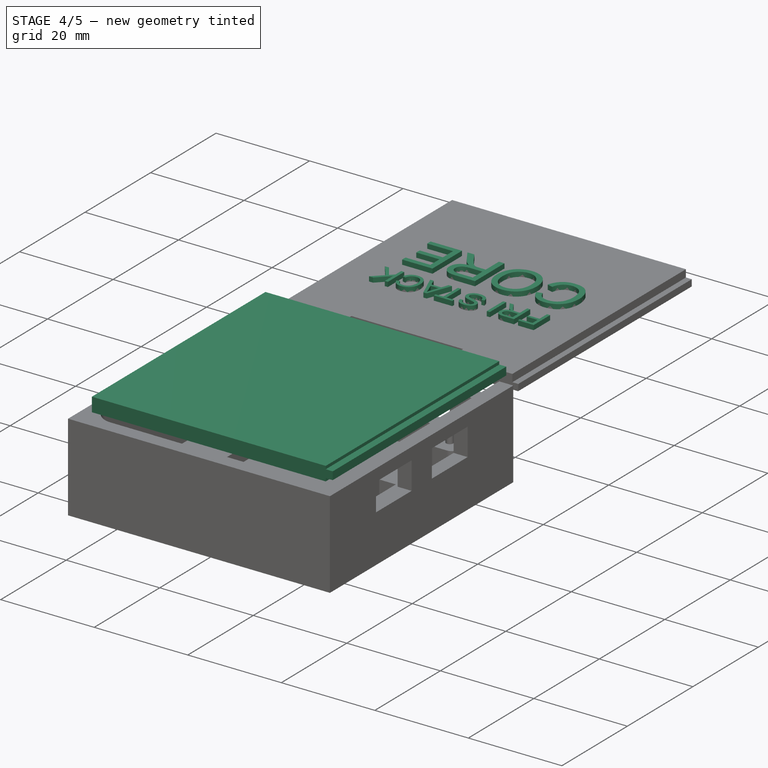
[diagram: stage 4 of 5 — iso view after this stage's code; geometry added in this stage tinted green]
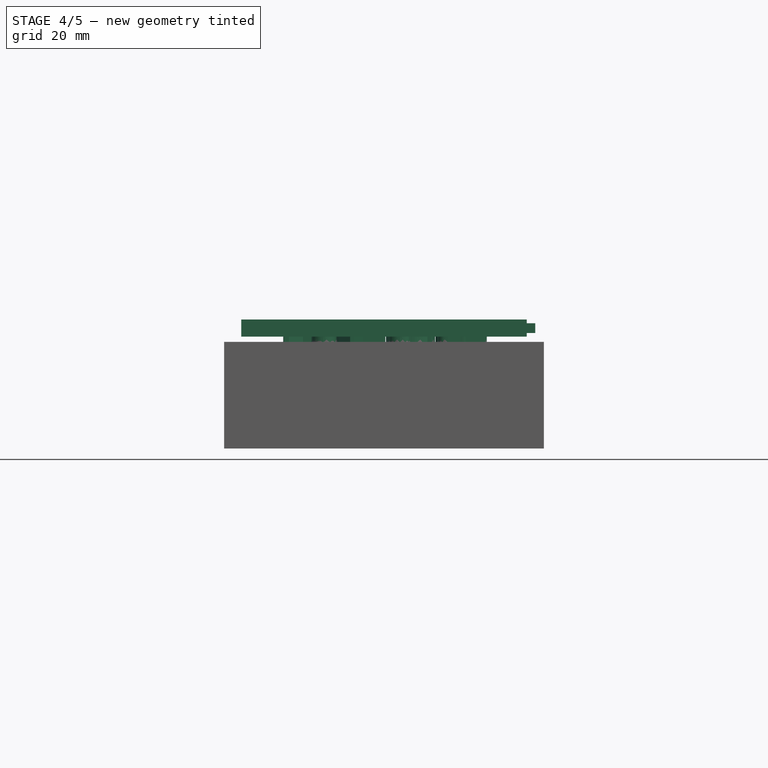
[diagram: stage 4 of 5 — front view after this stage's code; geometry added in this stage tinted green]
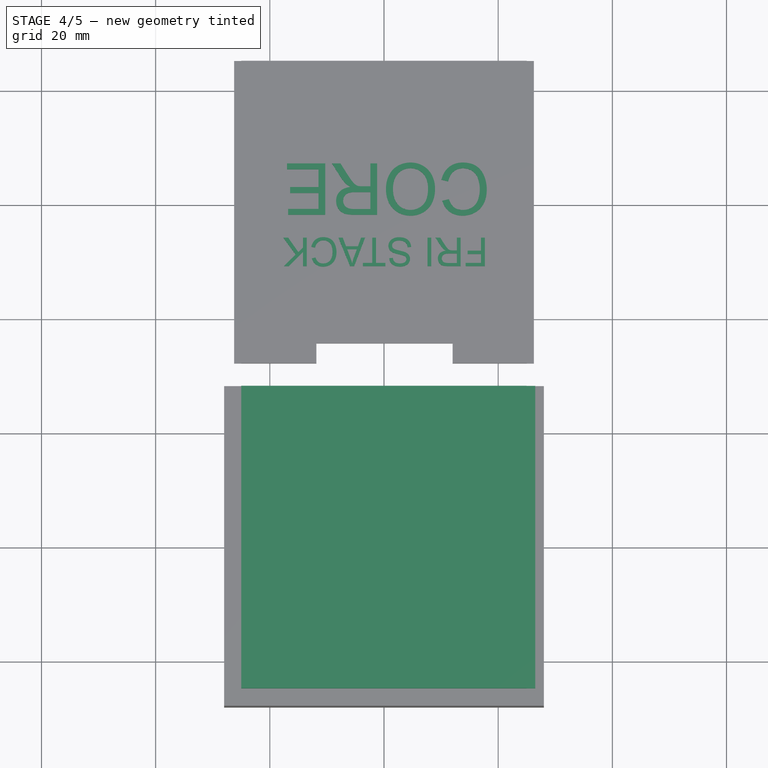
[diagram: stage 4 of 5 — top view after this stage's code; geometry added in this stage tinted green]
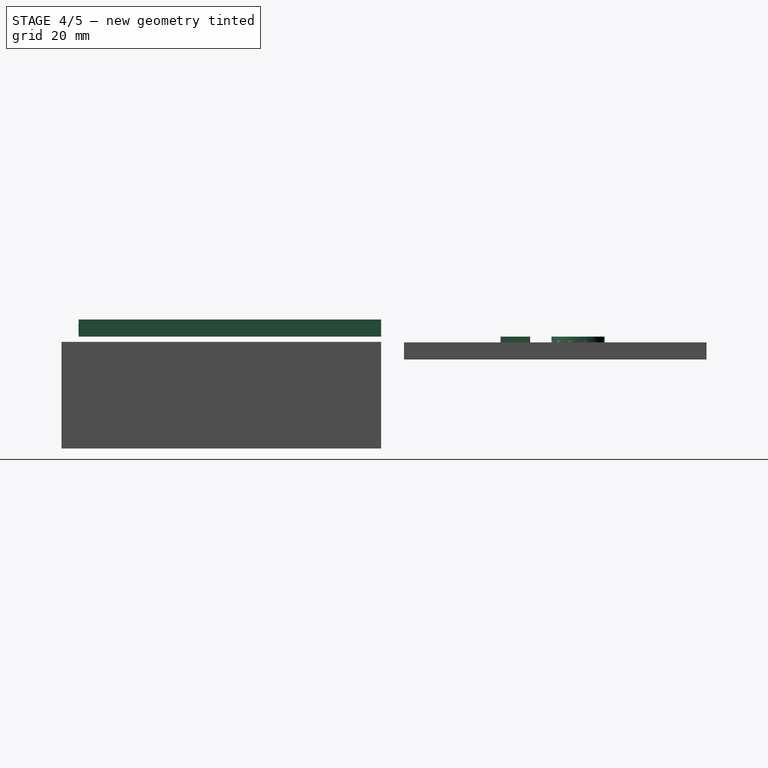
[diagram: stage 4 of 5 — right view after this stage's code; geometry added in this stage tinted green]
FEATURE [Part::Feature] Part__Feature  label="C_0603_1608Metric"
  Placement = pos=(147.6,-125.3,1.595) rot=(0,0,-1;1.5708rad)
  shape: bbox 0.8 x 1.6 x 0.8 mm, 28 faces (baked)
FEATURE [Part::Feature] Part__Feature001  label="R_0603_1608Metric"
  Placement = pos=(127.5,-134.725,1.595) rot=(0,0,-1;1.5708rad)
  shape: bbox 0.8 x 1.6 x 0.45 mm, 26 faces (baked)
FEATURE [Part::Feature] Part__Feature002  label="C_0603_1608Metric001"
  Placement = pos=(144.6,-125.3,1.595) rot=(0,0,-1;1.5708rad)
  shape: bbox 0.8 x 1.6 x 0.8 mm, 28 faces (baked)
FEATURE [Part::Feature] Part__Feature003  label="R_0603_1608Metric001"
  Placement = pos=(134.1,-137.8,1.595) rot=(0,0,-1;1.5708rad)
  shape: bbox 0.8 x 1.6 x 0.45 mm, 26 faces (baked)
FEATURE [Part::Feature] Part__Feature004  label="JST_PH_S4B-PH-K_1x04_P2.00mm_Horizontal"
  Placement = pos=(143.65,-136.5,1.595) rot=(0,0,1;1.5708rad)
  shape: bbox 7.6 x 9.9 x 8.25 mm, 174 faces (baked)
FEATURE [Part::Feature] Part__Feature005  label="C_0603_1608Metric002"
  Placement = pos=(104.7,-135.3,1.595) rot=(0,0,-1;1.5708rad)
  shape: bbox 0.8 x 1.6 x 0.8 mm, 28 faces (baked)
FEATURE [Part::Feature] Part__Feature006  label="C_0603_1608Metric003"
  Placement = pos=(129.6,-111.2,1.595) rot=(0,0,1;0rad)
  shape: bbox 1.6 x 0.8 x 0.8 mm, 28 faces (baked)
FEATURE [Part::Feature] Part__Feature007  label="C_0603_1608Metric004"
  Placement = pos=(115.625,-142.6,1.595) rot=(0,0,1;0rad)
  shape: bbox 1.6 x 0.8 x 0.8 mm, 28 faces (baked)
FEATURE [Part::Feature] Part__Feature008  label="C_0603_1608Metric005"
  Placement = pos=(115.625,-145.6,1.595) rot=(0,0,1;0rad)
  shape: bbox 1.6 x 0.8 x 0.8 mm, 28 faces (baked)
FEATURE [Part::Feature] Part__Feature009  label="C_0603_1608Metric006"
  Placement = pos=(129.625,-114.2,1.595) rot=(0,0,1;0rad)
  shape: bbox 1.6 x 0.8 x 0.8 mm, 28 faces (baked)
FEATURE [Part::Feature] Part__Feature010  label="D_SOD-323"
  Placement = pos=(122.8,-116,1.595) rot=(0,0,1;3.14159rad)
  shape: bbox 2.5 x 1.25 x 1.1 mm, 67 faces (baked)
FEATURE [Part::Feature] Part__Feature011  label="C_0603_1608Metric007"
  Placement = pos=(139.8,-113.7,1.595) rot=(0,0,1;0rad)
  shape: bbox 1.6 x 0.8 x 0.8 mm, 28 faces (baked)
FEATURE [Part::Feature] Part__Feature012  label="C_0603_1608Metric008"
  Placement = pos=(111.85,-112.7,1.595) rot=(0,0,1;1.5708rad)
  shape: bbox 0.8 x 1.6 x 0.8 mm, 28 faces (baked)
FEATURE [Part::Feature] Part__Feature013  label="R_0603_1608Metric002"
  Placement = pos=(131.1,-137.8,1.595) rot=(0,0,-1;1.5708rad)
  shape: bbox 0.8 x 1.6 x 0.45 mm, 26 faces (baked)
FEATURE [Part::Feature] Part__Feature014  label="JST_PH_S4B-PH-K_1x04_P2.00mm_Horizontal001"
  Placement = pos=(143.65,-119.4,1.595) rot=(0,0,1;1.5708rad)
  shape: bbox 7.6 x 9.9 x 8.25 mm, 174 faces (baked)
FEATURE [Part::Feature] Part__Feature015  label="R_0603_1608Metric003"
  Placement = pos=(141.875,-101.4,1.595) rot=(0,0,1;0rad)
  shape: bbox 1.6 x 0.8 x 0.45 mm, 26 faces (baked)
FEATURE [Part::Feature] Part__Feature016  label="C_0603_1608Metric009"
  Placement = pos=(139.8,-110.7,1.595) rot=(0,0,1;0rad)
  shape: bbox 1.6 x 0.8 x 0.8 mm, 28 faces (baked)
FEATURE [Part::Feature] Part__Feature017  label="R_0603_1608Metric004"
  Placement = pos=(134.7,-122.8,1.595) rot=(0,0,1;0rad)
  shape: bbox 1.6 x 0.8 x 0.45 mm, 26 faces (baked)
FEATURE [Part::Feature] Part__Feature018  label="R_0603_1608Metric005"
  Placement = pos=(104.8,-115,1.595) rot=(0,0,-1;1.5708rad)
  shape: bbox 0.8 x 1.6 x 0.45 mm, 26 faces (baked)
FEATURE [Part::Feature] Part__Feature019  label="R_0603_1608Metric006"
  Placement = pos=(103.2,-135.3,1.595) rot=(0,0,1;1.5708rad)
  shape: bbox 0.8 x 1.6 x 0.45 mm, 26 faces (baked)
FEATURE [Part::Feature] Part__Feature020  label="C_0603_1608Metric010"
  Placement = pos=(148.2,-107.4,1.595) rot=(0,0,1;0rad)
  shape: bbox 1.6 x 0.8 x 0.8 mm, 28 faces (baked)
FEATURE [Part::Feature] Part__Feature021  label="LED_0805_2012Metric"
  Placement = pos=(132.9,-115.1,1.595) rot=(0,0,-1;1.5708rad)
  shape: bbox 1.25 x 2 x 1.1 mm, 50 faces (baked)
FEATURE [Part::Feature] Part__Feature022  label="R_0603_1608Metric007"
  Placement = pos=(126.7,-140.8,1.595) rot=(0,0,1;3.14159rad)
  shape: bbox 1.6 x 0.8 x 0.45 mm, 26 faces (baked)
FEATURE [Part::Feature] Part__Feature023  label="D_SOD-324"
  Placement = pos=(129.5,-115.9,1.595) rot=(0,0,1;0rad)
  shape: bbox 2.5 x 1.25 x 1.1 mm, 67 faces (baked)
FEATURE [Part::Feature] Part__Feature024  label="C_0603_1608Metric011"
  Placement = pos=(118.175,-135.8,1.595) rot=(0,0,1;0rad)
  shape: bbox 1.6 x 0.8 x 0.8 mm, 28 faces (baked)
FEATURE [Part::Feature] Part__Feature025  label="R_0603_1608Metric008"
  Placement = pos=(134.7,-124.3,1.595) rot=(0,0,1;0rad)
  shape: bbox 1.6 x 0.8 x 0.45 mm, 26 faces (baked)
FEATURE [Part::Feature] Part__Feature026  label="C_0603_1608Metric012"
  Placement = pos=(110.35,-112.7,1.595) rot=(0,0,1;1.5708rad)
  shape: bbox 0.8 x 1.6 x 0.8 mm, 28 faces (baked)
FEATURE [Part::Feature] Part__Feature027  label="R_0603_1608Metric009"
  Placement = pos=(135.7,-137.8,1.595) rot=(0,0,-1;1.5708rad)
  shape: bbox 0.8 x 1.6 x 0.45 mm, 26 faces (baked)
FEATURE [Part::Feature] Part__Feature028  label="C_0603_1608Metric013"
  Placement = pos=(113.35,-112.7,1.595) rot=(0,0,1;1.5708rad)
  shape: bbox 0.8 x 1.6 x 0.8 mm, 28 faces (baked)
FEATURE [Part::Feature] Part__Feature029  label="C_0603_1608Metric014"
  Placement = pos=(140.1,-147.1,1.595) rot=(0,0,1;3.14159rad)
  shape: bbox 1.6 x 0.8 x 0.8 mm, 28 faces (baked)
FEATURE [Part::Feature] Part__Feature030  label="C_0603_1608Metric015"
  Placement = pos=(108.8,-135.8,1.595) rot=(0,0,1;1.5708rad)
  shape: bbox 0.8 x 1.6 x 0.8 mm, 28 faces (baked)
FEATURE [Part::Feature] Part__Feature031  label="C_0603_1608Metric016"
  Placement = pos=(115.5,-116.6,1.595) rot=(0,0,1;0rad)
  shape: bbox 1.6 x 0.8 x 0.8 mm, 28 faces (baked)
FEATURE [Part::Feature] Part__Feature032  label="C_0603_1608Metric017"
  Placement = pos=(146.1,-125.3,1.595) rot=(0,0,-1;1.5708rad)
  shape: bbox 0.8 x 1.6 x 0.8 mm, 28 faces (baked)
FEATURE [Part::Feature] Part__Feature033  label="C_0603_1608Metric018"
  Placement = pos=(115.5,-119.6,1.595) rot=(0,0,1;0rad)
  shape: bbox 1.6 x 0.8 x 0.8 mm, 28 faces (baked)
FEATURE [Part::Feature] Part__Feature034  label="R_0603_1608Metric010"
  Placement = pos=(135.4,-116.5,1.595) rot=(0,0,1;3.14159rad)
  shape: bbox 1.6 x 0.8 x 0.45 mm, 26 faces (baked)
FEATURE [Part::Feature] Part__Feature035  label="R_0603_1608Metric011"
  Placement = pos=(134.9,-118.2,1.595) rot=(0,0,1;3.14159rad)
  shape: bbox 1.6 x 0.8 x 0.45 mm, 26 faces (baked)
FEATURE [Part::Feature] Part__Feature036  label="C_0603_1608Metric019"
  Placement = pos=(116.2,-122.5,1.595) rot=(0,0,-1;1.5708rad)
  shape: bbox 0.8 x 1.6 x 0.8 mm, 28 faces (baked)
FEATURE [Part::Feature] Part__Feature037  label="C_0603_1608Metric020"
  Placement = pos=(123.5,-114.3,1.595) rot=(0,0,1;3.14159rad)
  shape: bbox 1.6 x 0.8 x 0.8 mm, 28 faces (baked)
FEATURE [Part::Feature] Part__Feature038  label="PinSocket_1x09_P2.54mm_Vertical"
  Placement = pos=(135.25,-148.225,1.595) rot=(0,0,-1;1.5708rad)
  shape: bbox 22.86 x 2.54 x 11.6 mm, 244 faces (baked)
FEATURE [Part::Feature] Part__Feature039  label="C_0603_1608Metric021"
  Placement = pos=(142.7,-142,1.595) rot=(0,0,1;0rad)
  shape: bbox 1.6 x 0.8 x 0.8 mm, 28 faces (baked)
FEATURE [Part::Feature] Part__Feature040  label="C_0603_1608Metric022"
  Placement = pos=(139.8,-112.2,1.595) rot=(0,0,1;0rad)
  shape: bbox 1.6 x 0.8 x 0.8 mm, 28 faces (baked)
FEATURE [Part::Feature] Part__Feature041  label="R_0603_1608Metric012"
  Placement = pos=(126.7,-144.7,1.595) rot=(0,0,1;0rad)
  shape: bbox 1.6 x 0.8 x 0.45 mm, 26 faces (baked)
FEATURE [Part::Feature] Part__Feature042  label="JST_PH_S2B-PH-K_1x02_P2.00mm_Horizontal"
  Placement = pos=(117.55,-106.48,1.52) rot=(0,0,1;3.14159rad)
  shape: bbox 5.9 x 7.6 x 8.25 mm, 110 faces (baked)
FEATURE [Part::Feature] Part__Feature043  label="USB_C_Receptacle_GCT_USB4105-xx-A_16P_TopMnt_Horizontal"
  Placement = pos=(134.98,-103.675,1.595) rot=(0,0,1;3.14159rad)
  shape: bbox 8.94 x 7.78 x 4.26 mm, 646 faces, 36 solids (baked)
FEATURE [Part::Feature] Part__Feature044  label="R_0603_1608Metric013"
  Placement = pos=(132.6,-137.8,1.595) rot=(0,0,-1;1.5708rad)
  shape: bbox 0.8 x 1.6 x 0.45 mm, 26 faces (baked)
FEATURE [Part::Feature] Part__Feature045  label="SOT-23-6"
  Placement = pos=(136.35,-112,1.595) rot=(0,0,1;1.5708rad)
  shape: bbox 2.9 x 2.8 x 1.55 mm, 124 faces (baked)
FEATURE [Part::Feature] Part__Feature046  label="C_0603_1608Metric023"
  Placement = pos=(122.825,-110.45,1.595) rot=(0,0,1;3.14159rad)
  shape: bbox 1.6 x 0.8 x 0.8 mm, 28 faces (baked)
FEATURE [Part::Feature] Part__Feature047  label="R_0603_1608Metric014"
  Placement = pos=(126,-134.725,1.595) rot=(0,0,-1;1.5708rad)
  shape: bbox 0.8 x 1.6 x 0.45 mm, 26 faces (baked)
FEATURE [Part::Feature] Part__Feature048  label="C_0603_1608Metric024"
  Placement = pos=(103.3,-115,1.595) rot=(0,0,1;1.5708rad)
  shape: bbox 0.8 x 1.6 x 0.8 mm, 28 faces (baked)
FEATURE [Part::Feature] Part__Feature049  label="C_0603_1608Metric025"
  Placement = pos=(122.825,-111.95,1.595) rot=(0,0,1;3.14159rad)
  shape: bbox 1.6 x 0.8 x 0.8 mm, 28 faces (baked)
FEATURE [Part::Feature] Part__Feature050  label="SOT-223"
  Placement = pos=(125,-105,1.595) rot=(0,0,1;1.5708rad)
  shape: bbox 6.5 x 7 x 1.7 mm, 78 faces (baked)
FEATURE [Part::Feature] Part__Feature051  label="C_0603_1608Metric026"
  Placement = pos=(134.9,-119.7,1.595) rot=(0,0,1;0rad)
  shape: bbox 1.6 x 0.8 x 0.8 mm, 28 faces (baked)
FEATURE [Part::Feature] Part__Feature052  label="R_0603_1608Metric015"
  Placement = pos=(122.1,-133.8,1.595) rot=(0,0,1;3.14159rad)
  shape: bbox 1.6 x 0.8 x 0.45 mm, 26 faces (baked)
FEATURE [Part::Feature] Part__Feature053  label="C_0603_1608Metric027"
  Placement = pos=(115.5,-118.1,1.595) rot=(0,0,1;0rad)
  shape: bbox 1.6 x 0.8 x 0.8 mm, 28 faces (baked)
FEATURE [Part::Feature] Part__Feature054  label="R_0603_1608Metric016"
  Placement = pos=(108.1,-126.5,1.595) rot=(0,0,1;3.14159rad)
  shape: bbox 1.6 x 0.8 x 0.45 mm, 26 faces (baked)
FEATURE [Part::Feature] Part__Feature055  label="C_0603_1608Metric028"
  Placement = pos=(129.6,-112.7,1.595) rot=(0,0,1;0rad)
  shape: bbox 1.6 x 0.8 x 0.8 mm, 28 faces (baked)
FEATURE [Part::Feature] Part__Feature056  label="R_0603_1608Metric017"
  Placement = pos=(142.8,-108.9,1.595) rot=(0,0,1;3.14159rad)
  shape: bbox 1.6 x 0.8 x 0.45 mm, 26 faces (baked)
FEATURE [Part::Feature] Part__Feature057  label="C_0603_1608Metric029"
  Placement = pos=(140.1,-148.6,1.595) rot=(0,0,1;3.14159rad)
  shape: bbox 1.6 x 0.8 x 0.8 mm, 28 faces (baked)
FEATURE [Part::Feature] Part__Feature058  label="SOT-23"
  Placement = pos=(142.1,-125.8,1.595) rot=(0,0,1;1.5708rad)
  shape: bbox 3 x 2.5 x 1.2 mm, 76 faces (baked)
FEATURE [Part::Feature] Part__Feature059  label="SOIC-8_3.9x4.9mm_P1.27mm"
  Placement = pos=(132.2,-142.7,1.595) rot=(0,0,1;0rad)
  shape: bbox 6 x 4.9 x 1.75 mm, 156 faces (baked)
FEATURE [Part::Feature] Part__Feature060  label="R_0603_1608Metric018"
  Placement = pos=(141.1,-105.8,1.595) rot=(0,0,1;1.5708rad)
  shape: bbox 0.8 x 1.6 x 0.45 mm, 26 faces (baked)
FEATURE [Part::Feature] Part__Feature061  label="C_0603_1608Metric030"
  Placement = pos=(148.2,-108.9,1.595) rot=(0,0,1;0rad)
  shape: bbox 1.6 x 0.8 x 0.8 mm, 28 faces (baked)
FEATURE [Part::Feature] Part__Feature062  label="R_0603_1608Metric019"
  Placement = pos=(133.9,-111.4,1.595) rot=(0,0,-1;1.5708rad)
  shape: bbox 0.8 x 1.6 x 0.45 mm, 26 faces (baked)
FEATURE [Part::Feature] Part__Feature063  label="R_0603_1608Metric020"
  Placement = pos=(108.1,-128,1.595) rot=(0,0,1;3.14159rad)
  shape: bbox 1.6 x 0.8 x 0.45 mm, 26 faces (baked)
FEATURE [Part::Feature] Part__Feature064  label="C_0603_1608Metric031"
  Placement = pos=(124.4,-138.9,1.595) rot=(0,0,1;1.5708rad)
  shape: bbox 0.8 x 1.6 x 0.8 mm, 28 faces (baked)
FEATURE [Part::Feature] Part__Feature065  label="C_0603_1608Metric032"
  Placement = pos=(115.625,-144.1,1.595) rot=(0,0,1;0rad)
  shape: bbox 1.6 x 0.8 x 0.8 mm, 28 faces (baked)
FEATURE [Part::Feature] Part__Feature066  label="PinSocket_1x12_P2.54mm_Vertical"
  Placement = pos=(138.6,-144.54,-0.085) rot=(1,0,0;3.14159rad)
  shape: bbox 2.54 x 30.48 x 11.6 mm, 322 faces (baked)
FEATURE [Part::Feature] Part__Feature067  label="PinSocket_1x12_P2.54mm_Vertical001"
  Placement = pos=(111.4,-144.54,-0.085) rot=(1,0,0;3.14159rad)
  shape: bbox 2.54 x 30.48 x 11.6 mm, 322 faces (baked)
FEATURE [Part::Part2DObjectPython] Rectangle  # Draft 2D object (typed FeaturePython)
  Area = 3136
  ChamferSize = 0
  Columns = 1
  FilletRadius = 0
  Height = 56
  Length = 56
  MakeFace = true
  Placement = pos=(-28,-28,-8.59) rot=(0,0,1;0rad)
  Rows = 1
FEATURE [Part::Part2DObjectPython] Rectangle002  label="HeaderRight"  # Draft 2D object (typed FeaturePython)
  Area = 111.439
  ChamferSize = 0
  Columns = 1
  FilletRadius = 0
  Height = 31.48
  Length = 3.54
  MakeFace = true
  Placement = pos=(-15.37,-21.32,-8.585) rot=(0,0,1;0rad)
  Rows = 1
FEATURE [Part::Part2DObjectPython] Rectangle004  label="HeaderTop"  # Draft 2D object (typed FeaturePython)
  Area = 84.4644
  AttacherType = Attacher::AttachEngine3D
  ChamferSize = 0
  Columns = 1
  FilletRadius = 0
  Height = 3.54
  Length = 23.86
  MakeFace = true
  Placement = pos=(-11.84,-25.03,10.095) rot=(0,0,1;0rad)
  Rows = 1
FEATURE [Part::Part2DObjectPython] Rectangle003  label="HeaderLeft"  # Draft 2D object (typed FeaturePython)
  Area = 111.439
  ChamferSize = 0
  Columns = 1
  FilletRadius = 0
  Height = 31.48
  Length = 3.54
  MakeFace = true
  Placement = pos=(11.83,-21.31,-8.585) rot=(0,0,1;0rad)
  Rows = 1
FEATURE [Part::Part2DObjectPython] Rectangle005  label="4pinLeft"  # Draft 2D object (typed FeaturePython)
  Area = 68.888
  ChamferSize = 0
  Columns = 1
  FilletRadius = 0
  Height = 6.32
  Length = 10.9
  MakeFace = true
  Placement = pos=(24.9,-13.95,-2.41) rot=(0.57735,0.57735,0.57735;2.0944rad)
  Rows = 1
FEATURE [Part::Part2DObjectPython] Rectangle006  label="4pinRight"  # Draft 2D object (typed FeaturePython)
  Area = 68.888
  AttacherType = Attacher::AttachEngine3D
  ChamferSize = 0
  Columns = 1
  FilletRadius = 0
  Height = 6.32
  Length = 10.9
  MakeFace = true
  Placement = pos=(24.9,3.15,-2.41) rot=(0.57735,0.57735,0.57735;2.0944rad)
  Rows = 1
FEATURE [Part::Part2DObjectPython] Rectangle007  label="C-port"  # Draft 2D object (typed FeaturePython)
  Area = 34.1416
  ChamferSize = 0
  Columns = 1
  FilletRadius = 1
  Height = 3.5
  Length = 10
  MakeFace = true
  Placement = pos=(5,25,1.51) rot=(1,0,0;1.5708rad)
  Rows = 1
FEATURE [Part::Part2DObjectPython] Rectangle008  label="2pin"  # Draft 2D object (typed FeaturePython)
  Area = 42
  ChamferSize = 0
  Columns = 1
  FilletRadius = 0
  Height = 6
  Length = 7
  MakeFace = true
  Placement = pos=(-12,25,1.51) rot=(1,0,0;1.5708rad)
  Rows = 1
FEATURE [Part::Part2DObjectPython] Rectangle009  label="InnerRectangle"  # Draft 2D object (typed FeaturePython)
  Area = 2486.27
  ChamferSize = 0
  Columns = 1
  FilletRadius = 4
  Height = 50
  Length = 50
  MakeFace = true
  Placement = pos=(-25,-25,-8.585) rot=(0,0,1;0rad)
  Rows = 1
FEATURE [Part::Feature] Part__Feature068  label="FRISTACK_CORE_PCB"
  shape: bbox 50 x 50 x 1.51 mm, 75 faces (baked)
FEATURE [App::Part] FRISTACK_CORE_1  label="FRISTACK_CORE 1"
  Group = -> [Part__Feature,Part__Feature001,Part__Feature002,Part__Feature003,Part__Feature004,Part__Feature005,Part__Feature006,Part__Feature007,Part__Feature008,Part__Feature009,Part__Feature010,Part__Feature011,Part__Feature012,Part__Feature013,Part__Feature014,Part__Feature015,Part__Feature016,Part__Feature017,Part__Feature018,Part__Feature019,Part__Feature020,Part__Feature021,Part__Feature022,+46 more]
  Origin = -> Origin001
  Placement = pos=(-125,125,-3) rot=(0,0,1;0rad)
FEATURE [Sketcher::SketchObject] Sketch002  label="Battery "
  ArcFitTolerance = 1e-06
  FullyConstrained = false
  MakeInternals = false
  Placement = pos=(0,25,-3) rot=(1,0,0;1.5708rad)
  sketch-geometry (8):
    g0: LineSegment StartX=-12.0059 StartY=1.5164 StartZ=0 EndX=-5.00125 EndY=1.5164 EndZ=0
    g1: LineSegment StartX=-5.00125 StartY=1.5164 StartZ=0 EndX=-5.00125 EndY=7.51018 EndZ=0
    g2: LineSegment StartX=-5.00125 StartY=7.51018 StartZ=0 EndX=-12.0059 EndY=7.51018 EndZ=0
    g3: LineSegment StartX=-12.0059 StartY=7.51018 StartZ=0 EndX=-12.0059 EndY=1.5164 EndZ=0
    g4: LineSegment StartX=-25.0115 StartY=10.9938 StartZ=0 EndX=-25.0115 EndY=6.99378 EndZ=0
    g5: LineSegment StartX=-25.0115 StartY=6.99378 StartZ=0 EndX=24.9885 EndY=6.99378 EndZ=0
    g6: LineSegment StartX=24.9885 StartY=6.99378 StartZ=0 EndX=24.9885 EndY=10.9938 EndZ=0
    g7: LineSegment StartX=24.9885 StartY=10.9938 StartZ=0 EndX=-25.0115 EndY=10.9938 EndZ=0
  constraints (18):
    c: Coincident(g0,g1)
    c: Coincident(g1,g2)
    c: Coincident(g2,g3)
    c: Coincident(g3,g0)
    c: Horizontal(g0)
    c: Horizontal(g2)
    c: Vertical(g1)
    c: Vertical(g3)
    c: Coincident(g4,g5)
    c: Coincident(g5,g6)
    c: Coincident(g6,g7)
    c: Coincident(g7,g4)
    c: Vertical(g4)
    c: Vertical(g6)
    c: Horizontal(g5)
    c: Horizontal(g7)
    c: Distance(g4,g6) = 50
    c: DistanceY(g4,g4) = 4
FEATURE [Sketcher::SketchObject] Sketch003  label="4pinHoles"
  ArcFitTolerance = 1e-06
  FullyConstrained = false
  MakeInternals = false
  Placement = pos=(25,0,-3) rot=(0.57735,0.57735,0.57735;2.0944rad)
  sketch-geometry (8):
    g0: LineSegment StartX=-13.95 StartY=7.50474 StartZ=0 EndX=-13.95 EndY=1.59561 EndZ=0
    g1: LineSegment StartX=-13.95 StartY=1.59561 StartZ=0 EndX=-3.04994 EndY=1.59561 EndZ=0
    g2: LineSegment StartX=-3.04994 StartY=1.59561 StartZ=0 EndX=-3.04994 EndY=7.50474 EndZ=0
    g3: LineSegment StartX=-3.04994 StartY=7.50474 StartZ=0 EndX=-13.95 EndY=7.50474 EndZ=0
    g4: LineSegment StartX=3.15002 StartY=7.47509 StartZ=0 EndX=3.15002 EndY=1.59456 EndZ=0
    g5: LineSegment StartX=3.15002 StartY=1.59456 StartZ=0 EndX=14.0498 EndY=1.59456 EndZ=0
    g6: LineSegment StartX=14.0498 StartY=1.59456 StartZ=0 EndX=14.0498 EndY=7.47509 EndZ=0
    g7: LineSegment StartX=14.0498 StartY=7.47509 StartZ=0 EndX=3.15002 EndY=7.47509 EndZ=0
  constraints (16):
    c: Coincident(g0,g1)
    c: Coincident(g1,g2)
    c: Coincident(g2,g3)
    c: Coincident(g3,g0)
    c: Vertical(g0)
    c: Vertical(g2)
    c: Horizontal(g1)
    c: Horizontal(g3)
    c: Coincident(g4,g5)
    c: Coincident(g5,g6)
    c: Coincident(g6,g7)
    c: Coincident(g7,g4)
    c: Vertical(g4)
    c: Vertical(g6)
    c: Horizontal(g5)
    c: Horizontal(g7)
FEATURE [Sketcher::SketchObject] Sketch001  label="C_port"
  ArcFitTolerance = 1e-06
  AttachmentOffset = pos=(10,3.26,0) rot=(0,0,1;0rad)
  FullyConstrained = false
  MakeInternals = false
  MapMode = 5
  Placement = pos=(10,25,0.26) rot=(1,0,0;1.5708rad)
  sketch-geometry (13):
    g0: LineSegment StartX=-3.09974 StartY=-3.5 StartZ=0 EndX=3.10405 EndY=-3.5 EndZ=0
    g1: LineSegment StartX=6.5 StartY=-0.104045 StartZ=0 EndX=6.5 EndY=0.345505 EndZ=0
    g2: LineSegment StartX=3.3455 StartY=3.5 StartZ=0 EndX=-3.10013 EndY=3.5 EndZ=0
    g3: LineSegment StartX=-6.5 StartY=0.100127 StartZ=0 EndX=-6.5 EndY=-0.0997371 EndZ=0
    g4: GeomPoint [constr] X=0 Y=0 Z=0
    g5: ArcOfCircle CenterX=-3.10013 CenterY=0.100127 CenterZ=0 NormalX=0 NormalY=0 NormalZ=1 AngleXU=0 Radius=3.39987 StartAngle=1.5708 EndAngle=3.14159
    g6: GeomPoint [constr] X=-6.5 Y=3.5 Z=0
    g7: ArcOfCircle CenterX=-3.09974 CenterY=-0.0997371 CenterZ=0 NormalX=0 NormalY=0 NormalZ=1 AngleXU=0 Radius=3.40026 StartAngle=3.14159 EndAngle=4.71239
    g8: GeomPoint [constr] X=-6.5 Y=-3.5 Z=0
    g9: ArcOfCircle CenterX=3.3455 CenterY=0.345505 CenterZ=0 NormalX=0 NormalY=0 NormalZ=1 AngleXU=0 Radius=3.1545 StartAngle=0 EndAngle=1.5708
    g10: GeomPoint [constr] X=6.5 Y=3.5 Z=0
    g11: ArcOfCircle CenterX=3.10405 CenterY=-0.104045 CenterZ=0 NormalX=0 NormalY=0 NormalZ=1 AngleXU=0 Radius=3.39595 StartAngle=4.71239 EndAngle=6.28319
    g12: GeomPoint [constr] X=6.5 Y=-3.5 Z=0
  constraints (24):
    c: Horizontal(g0)
    c: Horizontal(g2)
    c: Vertical(g1)
    c: Vertical(g3)
    c: Symmetric(g10,g8,g4)
    c: Distance(g12,g8) = 13
    c: Distance(g8,g6) = 7
    c: Coincident(g4,g-1)
    c: PointOnObject(g6,g2)
    c: PointOnObject(g6,g3)
    c: Tangent(g2,g5) = -1.5708
    c: Tangent(g3,g5) = -1.5708
    c: PointOnObject(g8,g3)
    c: PointOnObject(g8,g0)
    c: Tangent(g3,g7) = -1.5708
    c: Tangent(g0,g7) = -1.5708
    c: PointOnObject(g10,g1)
    c: PointOnObject(g10,g2)
    c: Tangent(g1,g9) = -1.5708
    c: Tangent(g2,g9) = -1.5708
    c: PointOnObject(g12,g1)
    c: PointOnObject(g12,g0)
    c: Tangent(g1,g11) = -1.5708
    c: Tangent(g0,g11) = -1.5708
FEATURE [Sketcher::SketchObject] Sketch008  label="HeaderTopHole"
  ArcFitTolerance = 1e-06
  FullyConstrained = false
  MakeInternals = false
  MapMode = 2
  Placement = pos=(-11.84,-25.03,7.1) rot=(0,0,1;0rad)
  sketch-geometry (4):
    g0: LineSegment StartX=0 StartY=0 StartZ=0 EndX=23.8575 EndY=0 EndZ=0
    g1: LineSegment StartX=23.8575 StartY=0 StartZ=0 EndX=23.8575 EndY=3.52713 EndZ=0
    g2: LineSegment StartX=23.8575 StartY=3.52713 StartZ=0 EndX=0 EndY=3.52713 EndZ=0
    g3: LineSegment StartX=0 StartY=3.52713 StartZ=0 EndX=0 EndY=0 EndZ=0
  constraints (9):
    c: Coincident(g0,g1)
    c: Coincident(g1,g2)
    c: Coincident(g2,g3)
    c: Coincident(g3,g0)
    c: Horizontal(g0)
    c: Horizontal(g2)
    c: Vertical(g1)
    c: Vertical(g3)
    c: Coincident(g0,g-1)
FEATURE [Sketcher::SketchObject] Sketch009
  ArcFitTolerance = 1e-06
  FullyConstrained = true
  MakeInternals = false
  Placement = pos=(25,1.5,9.5) rot=(0.57735,0.57735,0.57735;2.0944rad)
  sketch-geometry (5):
    g0: LineSegment StartX=-26.5 StartY=-1.5 StartZ=0 EndX=26.5 EndY=-1.5 EndZ=0
    g1: LineSegment StartX=26.5 StartY=-1.5 StartZ=0 EndX=26.5 EndY=1.5 EndZ=0
    g2: LineSegment StartX=26.5 StartY=1.5 StartZ=0 EndX=-26.5 EndY=1.5 EndZ=0
    g3: LineSegment StartX=-26.5 StartY=1.5 StartZ=0 EndX=-26.5 EndY=-1.5 EndZ=0
    g4: GeomPoint [constr] X=0 Y=0 Z=0
  constraints (12):
    c: Coincident(g0,g1)
    c: Coincident(g1,g2)
    c: Coincident(g2,g3)
    c: Coincident(g3,g0)
    c: Horizontal(g0)
    c: Horizontal(g2)
    c: Vertical(g1)
    c: Vertical(g3)
    c: Symmetric(g2,g0,g4)
    c: Distance(g1,g3) = 53
    c: Distance(g0,g2) = 3
    c: Coincident(g4,g-1)
FEATURE [PartDesign::Pad] Pad004
  Direction = (1,-1e-16,2e-16)
  Length = 50
  Length2 = 10
  Placement = pos=(25,1.5,9.5) rot=(0.57735,0.57735,0.57735;2.0944rad)
  Profile = -> Sketch009
  ReferenceAxis = -> Sketch009 [N_Axis]
  Refine = true
  Reversed = true
  Suppressed = false
  Type = 0
FEATURE [Sketcher::SketchObject] Sketch010  label="Vysuvka"
  ArcFitTolerance = 1e-06
  FullyConstrained = false
  MakeInternals = false
  Placement = pos=(25,0,-0.5) rot=(0.57735,0.57735,0.57735;2.0944rad)
  sketch-geometry (4):
    g0: LineSegment StartX=-25.006 StartY=10.8484 StartZ=0 EndX=-25.006 EndY=9.1484 EndZ=0
    g1: LineSegment StartX=-25.006 StartY=9.1484 StartZ=0 EndX=27.994 EndY=9.1484 EndZ=0
    g2: LineSegment StartX=27.994 StartY=9.1484 StartZ=0 EndX=27.994 EndY=10.8484 EndZ=0
    g3: LineSegment StartX=27.994 StartY=10.8484 StartZ=0 EndX=-25.006 EndY=10.8484 EndZ=0
  constraints (10):
    c: Coincident(g0,g1)
    c: Coincident(g1,g2)
    c: Coincident(g2,g3)
    c: Coincident(g3,g0)
    c: Vertical(g0)
    c: Vertical(g2)
    c: Horizontal(g1)
    c: Horizontal(g3)
    c: Distance(g0,g2) = 53
    c: Distance(g1,g3) = 1.7
FEATURE [PartDesign::Pad] Pad005
  BaseFeature = -> Pad004
  Direction = (1,-1e-16,2e-16)
  Length = 1.5
  Length2 = 10
  Placement = pos=(25,1.5,9.5) rot=(0.57735,0.57735,0.57735;2.0944rad)
  Profile = -> Sketch010
  ReferenceAxis = -> Sketch010 [N_Axis]
  Refine = true
  Suppressed = false
  Type = 0
FEATURE [Part::Part2DObjectPython] ShapeString  label="FriStack"  # Draft 2D object (typed FeaturePython)
  FontFile = <path>
  Fuse = false
  Justification = 6
  JustificationReference = 0
  KeepLeftMargin = false
  MakeFace = true
  ObliqueAngle = 0
  Placement = pos=(17.66,-3,11) rot=(0,0,1;3.14159rad)
  ScaleToSize = true
  Size = 5
  String = FRI STACK
  Tracking = 0
FEATURE [Part::Part2DObjectPython] ShapeString001  label="Core"  # Draft 2D object (typed FeaturePython)
  FontFile = <path>
  Fuse = false
  Justification = 6
  JustificationReference = 0
  KeepLeftMargin = false
  MakeFace = true
  ObliqueAngle = 0
  Placement = pos=(18,10,11.5) rot=(0,0,1;3.14159rad)
  ScaleToSize = true
  Size = 9
  String = CORE
  Tracking = 0
FEATURE [Part::Extrusion] Extrude  label="FriStack1"
  Base = -> ShapeString
  Dir = (0,0,1)
  DirMode = 2
  FaceMakerClass = Part::FaceMakerBullseye
  FaceMakerMode = 3
  LengthFwd = 1
  LengthRev = 0
  Placement = pos=(0,57,-4) rot=(0,0,1;0rad)
  Solid = false
  Symmetric = false
FEATURE [Part::Extrusion] Extrude001  label="Core1"
  Base = -> ShapeString001
  Dir = (0,0,1)
  DirMode = 2
  FaceMakerClass = Part::FaceMakerBullseye
  FaceMakerMode = 3
  LengthFwd = 1
  LengthRev = 0
  Placement = pos=(0,57,-4.5) rot=(0,0,1;0rad)
  Solid = false
  Symmetric = false
FEATURE [Part::MultiFuse] Fusion002  label="Text"
  Shapes = -> [Extrude,Extrude001]
FEATURE [Part::Fuse] Fusion004
  Base = -> Pocket009
  Tool = -> Extrude002
FEATURE [Part::Fuse] Fusion005
  Base = -> Extrude003
  Tool = -> Fusion004
FEATURE [Part::MultiFuse] Fusion006
  Shapes = -> [Extrude003,Cut]
FEATURE [Part::MultiFuse] Fusion007  label="VerziaZle"
  Shapes = -> [Extrude002,Fusion006]
FEATURE [Part::MultiFuse] Fusion009  label="bottom_v1.0"
  Shapes = -> [Extrude002,Fusion008]
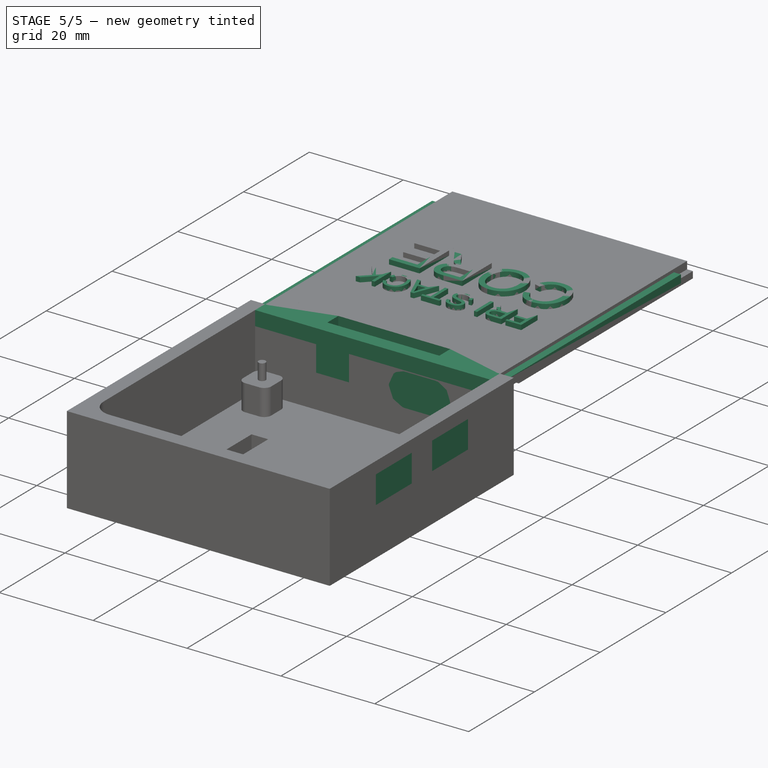
[diagram: stage 5 of 5 — iso view after this stage's code; geometry added in this stage tinted green]
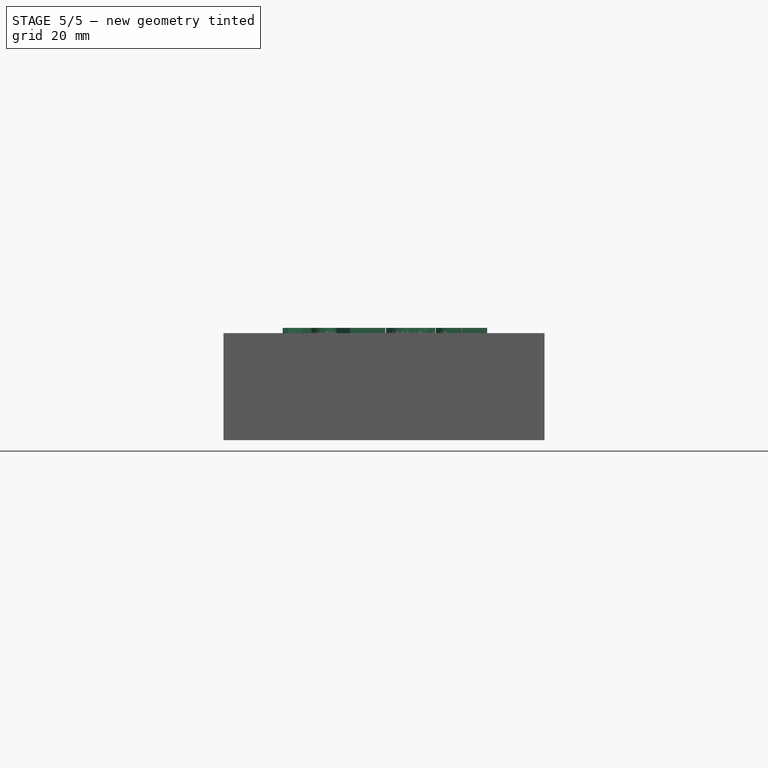
[diagram: stage 5 of 5 — front view after this stage's code; geometry added in this stage tinted green]
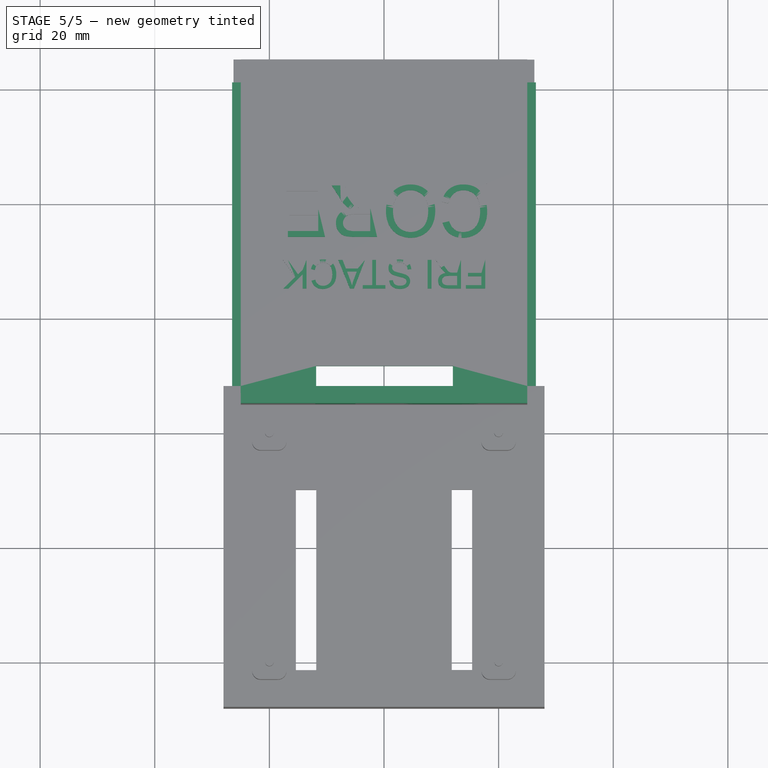
[diagram: stage 5 of 5 — top view after this stage's code; geometry added in this stage tinted green]
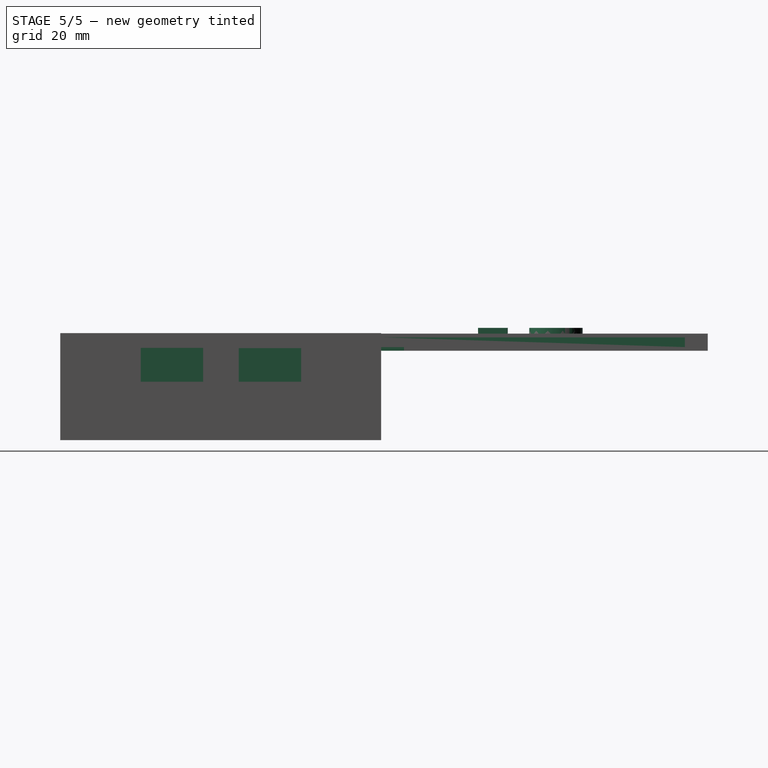
[diagram: stage 5 of 5 — right view after this stage's code; geometry added in this stage tinted green]
FEATURE [Sketcher::SketchObject] Sketch011  label="zadnaVysuvka"
  ArcFitTolerance = 1e-06
  FullyConstrained = false
  MakeInternals = false
  sketch-geometry (8):
    g0: LineSegment StartX=30.7932 StartY=10.3496 StartZ=0 EndX=30.7932 EndY=8.64956 EndZ=0
    g1: LineSegment StartX=30.7932 StartY=8.64956 StartZ=0 EndX=45.2932 EndY=8.64956 EndZ=0
    g2: LineSegment StartX=45.2932 StartY=8.64956 StartZ=0 EndX=45.2932 EndY=10.3496 EndZ=0
    g3: LineSegment StartX=45.2932 StartY=10.3496 StartZ=0 EndX=30.7932 EndY=10.3496 EndZ=0
    g4: LineSegment StartX=6.80848 StartY=10.3282 StartZ=0 EndX=-7.69152 EndY=10.3282 EndZ=0
    g5: LineSegment StartX=-7.69152 StartY=10.3282 StartZ=0 EndX=-7.69152 EndY=8.62821 EndZ=0
    g6: LineSegment StartX=-7.69152 StartY=8.62821 StartZ=0 EndX=6.80848 EndY=8.62821 EndZ=0
    g7: LineSegment StartX=6.80848 StartY=8.62821 StartZ=0 EndX=6.80848 EndY=10.3282 EndZ=0
  constraints (20):
    c: Coincident(g0,g1)
    c: Coincident(g1,g2)
    c: Coincident(g2,g3)
    c: Coincident(g3,g0)
    c: Vertical(g0)
    c: Vertical(g2)
    c: Horizontal(g1)
    c: Horizontal(g3)
    c: Distance(g0,g2) = 14.5
    c: Distance(g1,g3) = 1.7
    c: Coincident(g4,g5)
    c: Coincident(g5,g6)
    c: Coincident(g6,g7)
    c: Coincident(g7,g4)
    c: Horizontal(g4)
    c: Horizontal(g6)
    c: Vertical(g5)
    c: Vertical(g7)
    c: Distance(g5,g7) = 14.5
    c: Distance(g4,g6) = 1.7
FEATURE [PartDesign::Pad] Pad006
  BaseFeature = -> Pad005
  Direction = (0,0,1)
  Length = 1.5
  Length2 = 10
  Placement = pos=(25,1.5,9.5) rot=(0.57735,0.57735,0.57735;2.0944rad)
  Profile = -> Sketch011
  ReferenceAxis = -> Sketch011 [N_Axis]
  Refine = true
  Suppressed = false
  Type = 0
FEATURE [Sketcher::SketchObject] Sketch012  label="DruhaStranaVysuvka"
  ArcFitTolerance = 1e-06
  FullyConstrained = false
  MakeInternals = false
  Placement = pos=(-25,2.08,0) rot=(0.57735,0.57735,0.57735;2.0944rad)
  sketch-geometry (4):
    g0: LineSegment StartX=-27.0808 StartY=10.343 StartZ=0 EndX=-27.0808 EndY=8.64304 EndZ=0
    g1: LineSegment StartX=-27.0808 StartY=8.64304 StartZ=0 EndX=25.9192 EndY=8.64304 EndZ=0
    g2: LineSegment StartX=25.9192 StartY=8.64304 StartZ=0 EndX=25.9192 EndY=10.343 EndZ=0
    g3: LineSegment StartX=25.9192 StartY=10.343 StartZ=0 EndX=-27.0808 EndY=10.343 EndZ=0
  constraints (10):
    c: Coincident(g0,g1)
    c: Coincident(g1,g2)
    c: Coincident(g2,g3)
    c: Coincident(g3,g0)
    c: Vertical(g0)
    c: Vertical(g2)
    c: Horizontal(g1)
    c: Horizontal(g3)
    c: Distance(g0,g2) = 53
    c: Distance(g1,g3) = 1.7
FEATURE [PartDesign::Pad] Pad007
  BaseFeature = -> Pad006
  Direction = (1,-1e-16,2e-16)
  Length = 1.5
  Length2 = 10
  Placement = pos=(25,1.5,9.5) rot=(0.57735,0.57735,0.57735;2.0944rad)
  Profile = -> Sketch012
  ReferenceAxis = -> Sketch012 [N_Axis]
  Refine = true
  Reversed = true
  Suppressed = false
  Type = 0
FEATURE [Sketcher::SketchObject] Sketch013
  ArcFitTolerance = 1e-06
  FullyConstrained = false
  MakeInternals = false
  Placement = pos=(0,0,11.09) rot=(0,0,1;0rad)
  sketch-geometry (4):
    g0: LineSegment StartX=-11.8386 StartY=-21.4993 StartZ=0 EndX=-11.8386 EndY=-25.0024 EndZ=0
    g1: LineSegment StartX=-11.8386 StartY=-25.0024 StartZ=0 EndX=12.0183 EndY=-25.0024 EndZ=0
    g2: LineSegment StartX=12.0183 StartY=-25.0024 StartZ=0 EndX=12.0183 EndY=-21.4993 EndZ=0
    g3: LineSegment StartX=12.0183 StartY=-21.4993 StartZ=0 EndX=-11.8386 EndY=-21.4993 EndZ=0
  constraints (8):
    c: Coincident(g0,g1)
    c: Coincident(g1,g2)
    c: Coincident(g2,g3)
    c: Coincident(g3,g0)
    c: Vertical(g0)
    c: Vertical(g2)
    c: Horizontal(g1)
    c: Horizontal(g3)
FEATURE [PartDesign::Pocket] Pocket010
  BaseFeature = -> Pad007
  Direction = (0,0,-1)
  Length = 5
  Length2 = 5
  Placement = pos=(25,1.5,9.5) rot=(0.57735,0.57735,0.57735;2.0944rad)
  Profile = -> Sketch013
  ReferenceAxis = -> Sketch013 [N_Axis]
  Refine = true
  Reversed = true
  Suppressed = false
  Type = 0
FEATURE [PartDesign::Pocket] Pocket011
  BaseFeature = -> Pocket010
  Direction = (0,0,-1)
  Length = 5
  Length2 = 5
  Placement = pos=(25,1.5,9.5) rot=(0.57735,0.57735,0.57735;2.0944rad)
  Profile = -> Sketch013
  ReferenceAxis = -> Sketch013 [N_Axis]
  Refine = true
  Suppressed = false
  Type = 0
FEATURE [PartDesign::Pocket] Pocket001  label="baterka2pin"
  BaseFeature = -> Pad
  Direction = (0,1,0)
  Length = 50
  Length2 = 5
  Placement = pos=(0,0,-11.59) rot=(0,0,1;0rad)
  Profile = -> Sketch002
  ReferenceAxis = -> Sketch002 [N_Axis]
  Refine = true
  Suppressed = false
  Type = 0
FEATURE [PartDesign::Pocket] Pocket002  label="4pin"
  BaseFeature = -> Pocket001
  Direction = (-1,1e-16,-2e-16)
  Length = 50
  Length2 = 5
  Placement = pos=(0,0,-11.59) rot=(0,0,1;0rad)
  Profile = -> Sketch003
  ReferenceAxis = -> Sketch003 [N_Axis]
  Refine = true
  Reversed = true
  Suppressed = false
  Type = 0
FEATURE [PartDesign::Pocket] Pocket  label="Cport"
  BaseFeature = -> Pad001
  Direction = (0,1,0)
  Length = 5
  Length2 = 5
  Placement = pos=(0,0,-11.59) rot=(0,0,1;0rad)
  Profile = -> Sketch001
  ReferenceAxis = -> Sketch001 [N_Axis]
  Refine = true
  Suppressed = false
  Type = 0
FEATURE [Part::Fuse] Fusion
  Base = -> Pocket002
  Tool = -> Pocket
FEATURE [Part::Fuse] Fusion001
  Base = -> Pocket001
  Tool = -> Fusion
FEATURE [PartDesign::SubShapeBinder] Binder003
  BindCopyOnChange = 0
  BindMode = 0
  ClaimChildren = false
  Context = -> Body001 [Binder003.]
  Fuse = false
  MakeFace = true
  OffsetFill = false
  OffsetIntersection = false
  OffsetJoinType = 0
  OffsetOpenResult = false
  PartialLoad = false
  Refine = true
  Relative = true
  Support = -> [Body]
  _Version = 2
FEATURE [PartDesign::SubShapeBinder] Binder002
  BindCopyOnChange = 0
  BindMode = 0
  ClaimChildren = false
  Context = -> Body001 [Binder002.]
  Fuse = false
  MakeFace = true
  OffsetFill = false
  OffsetIntersection = false
  OffsetJoinType = 0
  OffsetOpenResult = false
  PartialLoad = false
  Refine = true
  Relative = true
  Support = -> [Body]
  _Version = 2
FEATURE [PartDesign::SubShapeBinder] Binder001
  BindCopyOnChange = 0
  BindMode = 0
  ClaimChildren = false
  Context = -> Body001 [Binder001.]
  Fuse = false
  MakeFace = true
  OffsetFill = false
  OffsetIntersection = false
  OffsetJoinType = 0
  OffsetOpenResult = false
  PartialLoad = false
  Refine = true
  Relative = true
  Support = -> [Body]
  _Version = 2
FEATURE [PartDesign::SubShapeBinder] Binder
  BindCopyOnChange = 0
  BindMode = 0
  ClaimChildren = false
  Context = -> Body001 [Binder.]
  Fuse = false
  MakeFace = true
  OffsetFill = false
  OffsetIntersection = false
  OffsetJoinType = 0
  OffsetOpenResult = false
  PartialLoad = false
  Refine = true
  Relative = true
  Support = -> [Body[Sketch.Edge21]]
  _Version = 2
FEATURE [PartDesign::Body] Body001  label="Zasuvka"
  AllowCompound = false
  Group = -> [Sketch009,Pad004,Sketch010,Pad005,Sketch011,Pad006,Sketch012,Pad007,Sketch013,Pocket010,Pocket011,ShapeString,ShapeString001,Binder,Binder001,Binder002,Binder003]
  Origin = -> Origin002
  Placement = pos=(0,57,-4) rot=(0,0,1;0rad)
  Tip = -> Pocket011
FEATURE [Part::MultiFuse] Fusion003  label="lid_v1.0"
  Placement = pos=(0,-4,0) rot=(0,0,1;0rad)
  Shapes = -> [Fusion002,Body001]
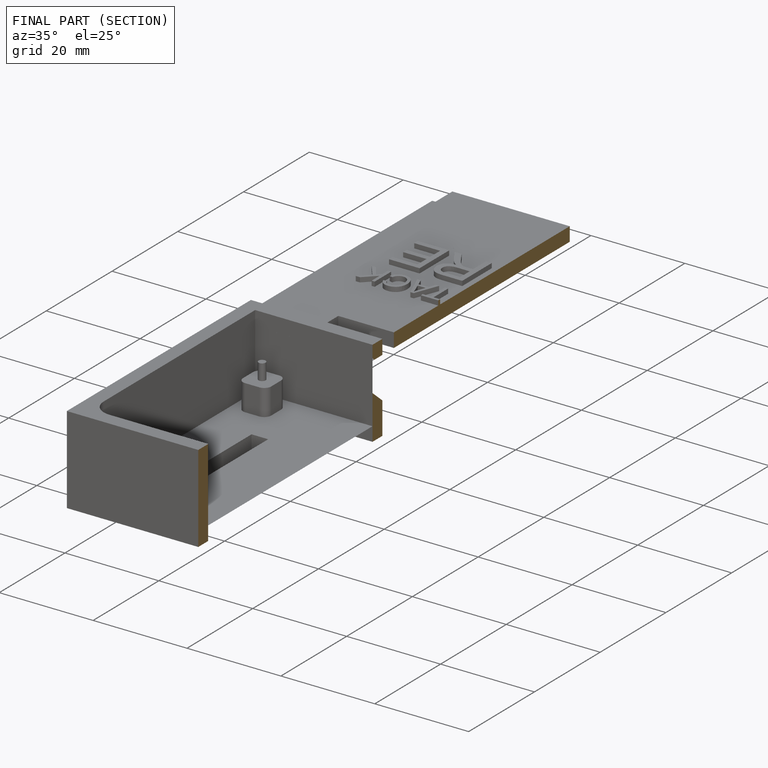
[diagram: finished part — half-section view (interior)]
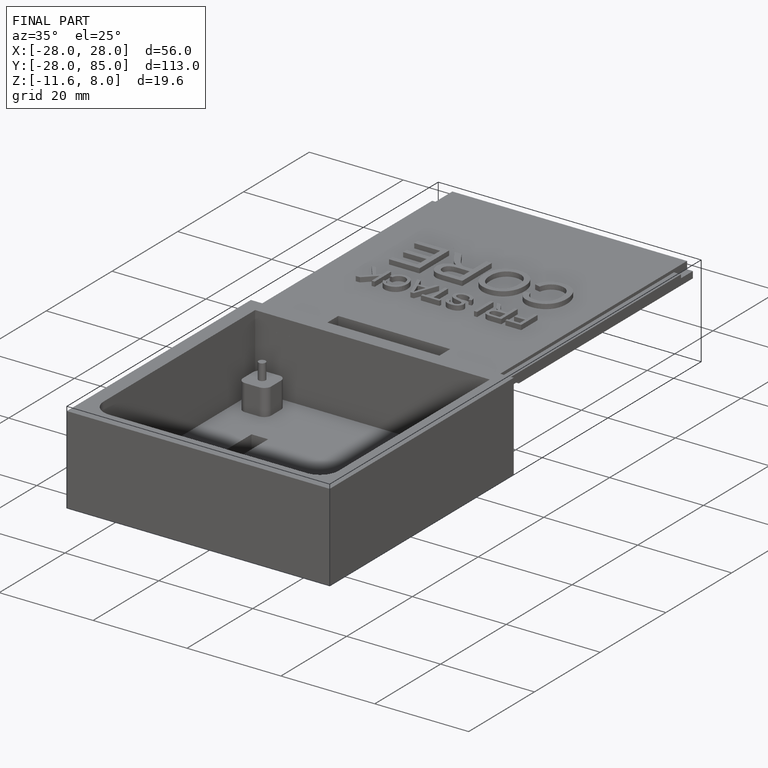
[diagram: finished part — iso view with bounding-box wireframe]
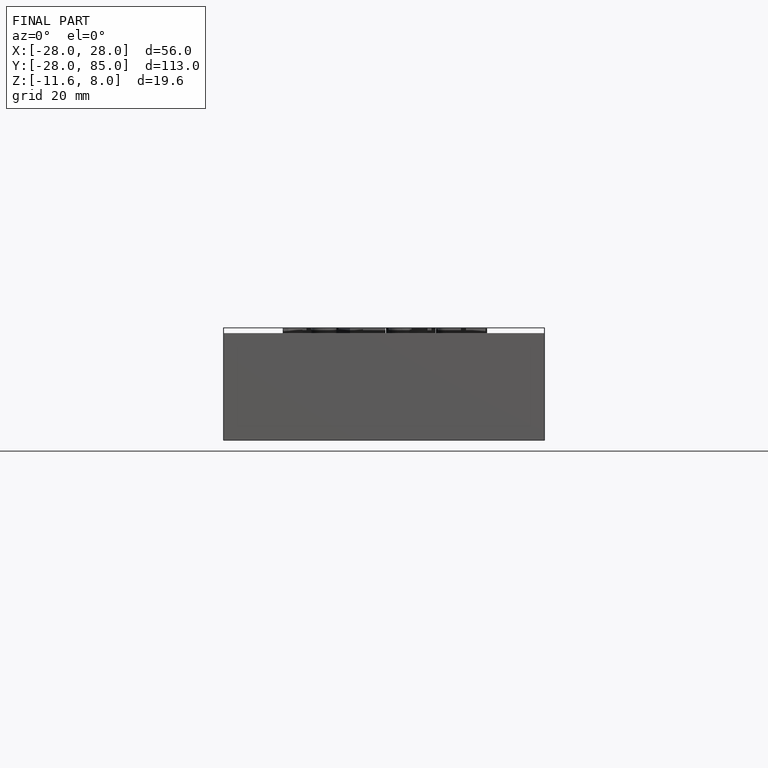
[diagram: finished part — front view with bounding-box wireframe]
